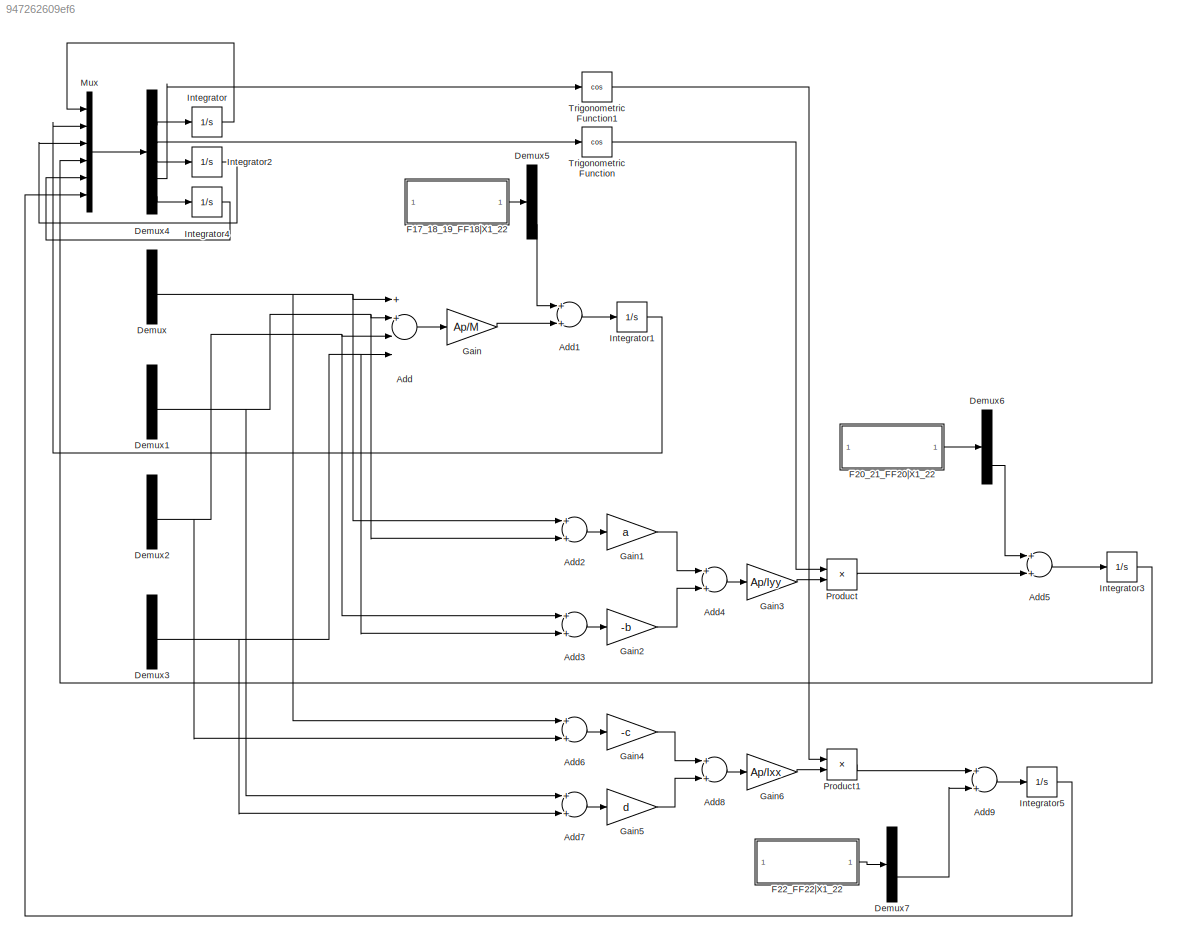
MODEL slx_947262609ef6
KIND model
CONFIG AbsTol = auto
CONFIG FixedStep = auto
CONFIG MaxStep = auto
CONFIG MinStep = auto
CONFIG RelTol = 1e-3
CONFIG SampleTimeConstraint = Unconstrained
CONFIG Solver = VariableStepAuto
CONFIG SolverMode = Auto
CONFIG SolverName = VariableStepAuto
CONFIG StartTime = 0.0
CONFIG StopTime = 10.0
BLOCK [Sum] Add
  InputSameDT = off
  Inputs = 4
  OutDataTypeStr = Inherit: Inherit via internal rule
  Ports = [4, 1]
  SaturateOnIntegerOverflow = off
BLOCK [Sum] Add1
  InputSameDT = off
  Inputs = 2
  OutDataTypeStr = Inherit: Inherit via internal rule
  Ports = [2, 1]
  SaturateOnIntegerOverflow = off
BLOCK [Sum] Add2
  InputSameDT = off
  Inputs = 2
  OutDataTypeStr = Inherit: Inherit via internal rule
  Ports = [2, 1]
  SaturateOnIntegerOverflow = off
BLOCK [Sum] Add3
  InputSameDT = off
  Inputs = 2
  OutDataTypeStr = Inherit: Inherit via internal rule
  Ports = [2, 1]
  SaturateOnIntegerOverflow = off
BLOCK [Sum] Add4
  InputSameDT = off
  Inputs = 2
  OutDataTypeStr = Inherit: Inherit via internal rule
  Ports = [2, 1]
  SaturateOnIntegerOverflow = off
BLOCK [Sum] Add5
  InputSameDT = off
  Inputs = 2
  OutDataTypeStr = Inherit: Inherit via internal rule
  Ports = [2, 1]
  SaturateOnIntegerOverflow = off
BLOCK [Sum] Add6
  InputSameDT = off
  Inputs = 2
  OutDataTypeStr = Inherit: Inherit via internal rule
  Ports = [2, 1]
  SaturateOnIntegerOverflow = off
BLOCK [Sum] Add7
  InputSameDT = off
  Inputs = 2
  OutDataTypeStr = Inherit: Inherit via internal rule
  Ports = [2, 1]
  SaturateOnIntegerOverflow = off
BLOCK [Sum] Add8
  InputSameDT = off
  Inputs = 2
  OutDataTypeStr = Inherit: Inherit via internal rule
  Ports = [2, 1]
  SaturateOnIntegerOverflow = off
BLOCK [Sum] Add9
  InputSameDT = off
  Inputs = 2
  OutDataTypeStr = Inherit: Inherit via internal rule
  Ports = [2, 1]
  SaturateOnIntegerOverflow = off
BLOCK [Demux] Demux
  DisplayOption = bar
  Ports = [1, 4]
BLOCK [Demux] Demux1
  DisplayOption = bar
  Ports = [1, 4]
BLOCK [Demux] Demux2
  DisplayOption = bar
  Ports = [1, 4]
BLOCK [Demux] Demux3
  DisplayOption = bar
  Ports = [1, 4]
BLOCK [Demux] Demux4
  DisplayOption = bar
  Outputs = 6
  Ports = [1, 6]
BLOCK [Demux] Demux5
  DisplayOption = bar
  Ports = [1, 4]
BLOCK [Demux] Demux6
  DisplayOption = bar
  Outputs = 3
  Ports = [1, 3]
BLOCK [Demux] Demux7
  DisplayOption = bar
  Outputs = 2
  Ports = [1, 2]
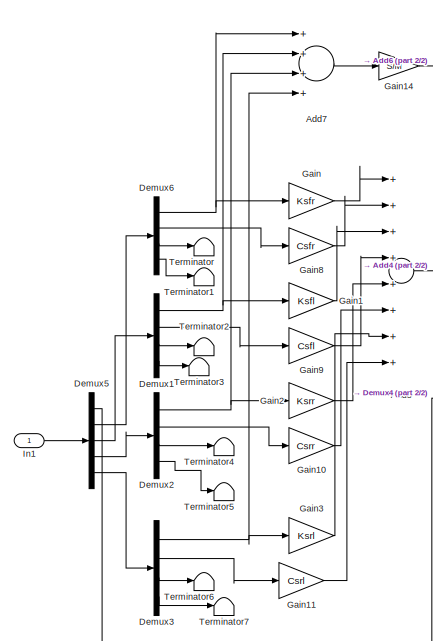
[diagram: F17_18_19_FF18|X1_22 - part 1/2, left side, full height]
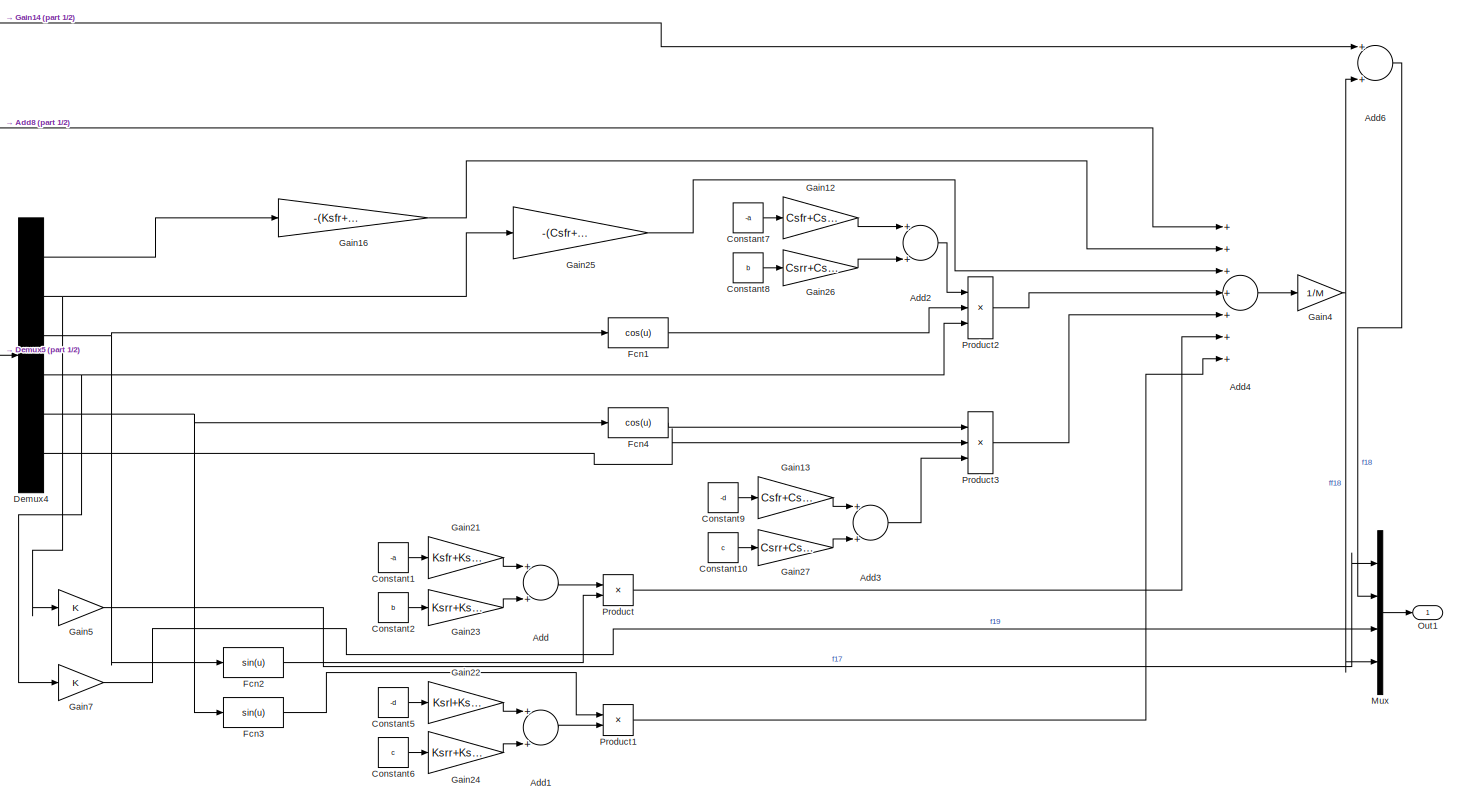
[diagram: F17_18_19_FF18|X1_22 - part 2/2, most of the canvas]
BLOCK [SubSystem] F17_18_19_FF18|X1_22
  Ports = [1, 1]
  RequestExecContextInheritance = off
  TreatAsAtomicUnit = on
  Variant = off
BLOCK [Sum] F17_18_19_FF18|X1_22/Add
  InputSameDT = off
  OutDataTypeStr = Inherit: Inherit via internal rule
  Ports = [2, 1]
  SaturateOnIntegerOverflow = off
BLOCK [Sum] F17_18_19_FF18|X1_22/Add1
  InputSameDT = off
  OutDataTypeStr = Inherit: Inherit via internal rule
  Ports = [2, 1]
  SaturateOnIntegerOverflow = off
BLOCK [Sum] F17_18_19_FF18|X1_22/Add2
  InputSameDT = off
  OutDataTypeStr = Inherit: Inherit via internal rule
  Ports = [2, 1]
  SaturateOnIntegerOverflow = off
BLOCK [Sum] F17_18_19_FF18|X1_22/Add3
  InputSameDT = off
  OutDataTypeStr = Inherit: Inherit via internal rule
  Ports = [2, 1]
  SaturateOnIntegerOverflow = off
BLOCK [Sum] F17_18_19_FF18|X1_22/Add4
  InputSameDT = off
  Inputs = +++++++
  OutDataTypeStr = Inherit: Inherit via internal rule
  Ports = [7, 1]
  SaturateOnIntegerOverflow = off
BLOCK [Sum] F17_18_19_FF18|X1_22/Add6
  InputSameDT = off
  OutDataTypeStr = Inherit: Inherit via internal rule
  Ports = [2, 1]
  SaturateOnIntegerOverflow = off
BLOCK [Sum] F17_18_19_FF18|X1_22/Add7
  InputSameDT = off
  Inputs = ++++
  OutDataTypeStr = Inherit: Inherit via internal rule
  Ports = [4, 1]
  SaturateOnIntegerOverflow = off
BLOCK [Sum] F17_18_19_FF18|X1_22/Add8
  InputSameDT = off
  Inputs = ++++++++
  OutDataTypeStr = Inherit: Inherit via internal rule
  Ports = [8, 1]
  SaturateOnIntegerOverflow = off
BLOCK [Constant] F17_18_19_FF18|X1_22/Constant1
  Value = -a
BLOCK [Constant] F17_18_19_FF18|X1_22/Constant10
  Value = c
BLOCK [Constant] F17_18_19_FF18|X1_22/Constant2
  Value = b
BLOCK [Constant] F17_18_19_FF18|X1_22/Constant5
  Value = -d
BLOCK [Constant] F17_18_19_FF18|X1_22/Constant6
  Value = c
BLOCK [Constant] F17_18_19_FF18|X1_22/Constant7
  Value = -a
BLOCK [Constant] F17_18_19_FF18|X1_22/Constant8
  Value = b
BLOCK [Constant] F17_18_19_FF18|X1_22/Constant9
  Value = -d
BLOCK [Demux] F17_18_19_FF18|X1_22/Demux1
  DisplayOption = bar
  Ports = [1, 4]
BLOCK [Demux] F17_18_19_FF18|X1_22/Demux2
  DisplayOption = bar
  Ports = [1, 4]
BLOCK [Demux] F17_18_19_FF18|X1_22/Demux3
  DisplayOption = bar
  Ports = [1, 4]
BLOCK [Demux] F17_18_19_FF18|X1_22/Demux4
  DisplayOption = bar
  Outputs = 6
  Ports = [1, 6]
BLOCK [Demux] F17_18_19_FF18|X1_22/Demux5
  DisplayOption = bar
  Outputs = 5
  Ports = [1, 5]
BLOCK [Demux] F17_18_19_FF18|X1_22/Demux6
  DisplayOption = bar
  Ports = [1, 4]
BLOCK [Fcn] F17_18_19_FF18|X1_22/Fcn1
  Expr = cos(u)
BLOCK [Fcn] F17_18_19_FF18|X1_22/Fcn2
  Expr = sin(u)
BLOCK [Fcn] F17_18_19_FF18|X1_22/Fcn3
  Expr = sin(u)
BLOCK [Fcn] F17_18_19_FF18|X1_22/Fcn4
  Expr = cos(u)
BLOCK [Gain] F17_18_19_FF18|X1_22/Gain
  Gain = Ksfr
  OutDataTypeStr = Inherit: Inherit via internal rule
  ParamDataTypeStr = Inherit: Inherit via internal rule
  SaturateOnIntegerOverflow = off
BLOCK [Gain] F17_18_19_FF18|X1_22/Gain1
  Gain = Ksfl
  OutDataTypeStr = Inherit: Inherit via internal rule
  ParamDataTypeStr = Inherit: Inherit via internal rule
  SaturateOnIntegerOverflow = off
BLOCK [Gain] F17_18_19_FF18|X1_22/Gain10
  Gain = Csrr
  OutDataTypeStr = Inherit: Inherit via internal rule
  ParamDataTypeStr = Inherit: Inherit via internal rule
  SaturateOnIntegerOverflow = off
BLOCK [Gain] F17_18_19_FF18|X1_22/Gain11
  Gain = Csrl
  OutDataTypeStr = Inherit: Inherit via internal rule
  ParamDataTypeStr = Inherit: Inherit via internal rule
  SaturateOnIntegerOverflow = off
BLOCK [Gain] F17_18_19_FF18|X1_22/Gain12
  Gain = Csfr+Csfl
  OutDataTypeStr = Inherit: Inherit via internal rule
  ParamDataTypeStr = Inherit: Inherit via internal rule
  SaturateOnIntegerOverflow = off
BLOCK [Gain] F17_18_19_FF18|X1_22/Gain13
  Gain = Csfr+Csfl
  OutDataTypeStr = Inherit: Inherit via internal rule
  ParamDataTypeStr = Inherit: Inherit via internal rule
  SaturateOnIntegerOverflow = off
BLOCK [Gain] F17_18_19_FF18|X1_22/Gain14
  Gain = S/M
  OutDataTypeStr = Inherit: Inherit via internal rule
  ParamDataTypeStr = Inherit: Inherit via internal rule
  SaturateOnIntegerOverflow = off
BLOCK [Gain] F17_18_19_FF18|X1_22/Gain16
  Gain = -(Ksfr+Ksfl+Ksrr+Ksrl)
  OutDataTypeStr = Inherit: Inherit via internal rule
  ParamDataTypeStr = Inherit: Inherit via internal rule
  SaturateOnIntegerOverflow = off
BLOCK [Gain] F17_18_19_FF18|X1_22/Gain2
  Gain = Ksrr
  OutDataTypeStr = Inherit: Inherit via internal rule
  ParamDataTypeStr = Inherit: Inherit via internal rule
  SaturateOnIntegerOverflow = off
BLOCK [Gain] F17_18_19_FF18|X1_22/Gain21
  Gain = Ksfr+Ksfl
  OutDataTypeStr = Inherit: Inherit via internal rule
  ParamDataTypeStr = Inherit: Inherit via internal rule
  SaturateOnIntegerOverflow = off
BLOCK [Gain] F17_18_19_FF18|X1_22/Gain22
  Gain = Ksrl+Ksfl
  OutDataTypeStr = Inherit: Inherit via internal rule
  ParamDataTypeStr = Inherit: Inherit via internal rule
  SaturateOnIntegerOverflow = off
BLOCK [Gain] F17_18_19_FF18|X1_22/Gain23
  Gain = Ksrr+Ksrl
  OutDataTypeStr = Inherit: Inherit via internal rule
  ParamDataTypeStr = Inherit: Inherit via internal rule
  SaturateOnIntegerOverflow = off
BLOCK [Gain] F17_18_19_FF18|X1_22/Gain24
  Gain = Ksrr+Ksfr
  OutDataTypeStr = Inherit: Inherit via internal rule
  ParamDataTypeStr = Inherit: Inherit via internal rule
  SaturateOnIntegerOverflow = off
BLOCK [Gain] F17_18_19_FF18|X1_22/Gain25
  Gain = -(Csfr+Csfl+Csrr+Csfr)
  OutDataTypeStr = Inherit: Inherit via internal rule
  ParamDataTypeStr = Inherit: Inherit via internal rule
  SaturateOnIntegerOverflow = off
BLOCK [Gain] F17_18_19_FF18|X1_22/Gain26
  Gain = Csrr+Csrl
  OutDataTypeStr = Inherit: Inherit via internal rule
  ParamDataTypeStr = Inherit: Inherit via internal rule
  SaturateOnIntegerOverflow = off
BLOCK [Gain] F17_18_19_FF18|X1_22/Gain27
  Gain = Csrr+Csrl
  OutDataTypeStr = Inherit: Inherit via internal rule
  ParamDataTypeStr = Inherit: Inherit via internal rule
  SaturateOnIntegerOverflow = off
BLOCK [Gain] F17_18_19_FF18|X1_22/Gain3
  Gain = Ksrl
  OutDataTypeStr = Inherit: Inherit via internal rule
  ParamDataTypeStr = Inherit: Inherit via internal rule
  SaturateOnIntegerOverflow = off
BLOCK [Gain] F17_18_19_FF18|X1_22/Gain4
  Gain = 1/M
  OutDataTypeStr = Inherit: Inherit via internal rule
  ParamDataTypeStr = Inherit: Inherit via internal rule
  SaturateOnIntegerOverflow = off
BLOCK [Gain] F17_18_19_FF18|X1_22/Gain5
  OutDataTypeStr = Inherit: Inherit via internal rule
  ParamDataTypeStr = Inherit: Inherit via internal rule
  SaturateOnIntegerOverflow = off
BLOCK [Gain] F17_18_19_FF18|X1_22/Gain7
  OutDataTypeStr = Inherit: Inherit via internal rule
  ParamDataTypeStr = Inherit: Inherit via internal rule
  SaturateOnIntegerOverflow = off
BLOCK [Gain] F17_18_19_FF18|X1_22/Gain8
  Gain = Csfr
  OutDataTypeStr = Inherit: Inherit via internal rule
  ParamDataTypeStr = Inherit: Inherit via internal rule
  SaturateOnIntegerOverflow = off
BLOCK [Gain] F17_18_19_FF18|X1_22/Gain9
  Gain = Csfl
  OutDataTypeStr = Inherit: Inherit via internal rule
  ParamDataTypeStr = Inherit: Inherit via internal rule
  SaturateOnIntegerOverflow = off
BLOCK [Inport] F17_18_19_FF18|X1_22/In1
  IconDisplay = Port number
BLOCK [Mux] F17_18_19_FF18|X1_22/Mux
  DisplayOption = bar
  Ports = [4, 1]
BLOCK [Outport] F17_18_19_FF18|X1_22/Out1
  IconDisplay = Port number
BLOCK [Product] F17_18_19_FF18|X1_22/Product
  InputSameDT = off
  OutDataTypeStr = Inherit: Inherit via internal rule
  Ports = [2, 1]
  RndMeth = Floor
  SaturateOnIntegerOverflow = off
BLOCK [Product] F17_18_19_FF18|X1_22/Product1
  InputSameDT = off
  OutDataTypeStr = Inherit: Inherit via internal rule
  Ports = [2, 1]
  RndMeth = Floor
  SaturateOnIntegerOverflow = off
BLOCK [Product] F17_18_19_FF18|X1_22/Product2
  InputSameDT = off
  Inputs = 3
  OutDataTypeStr = Inherit: Inherit via internal rule
  Ports = [3, 1]
  RndMeth = Floor
  SaturateOnIntegerOverflow = off
BLOCK [Product] F17_18_19_FF18|X1_22/Product3
  InputSameDT = off
  Inputs = 3
  OutDataTypeStr = Inherit: Inherit via internal rule
  Ports = [3, 1]
  RndMeth = Floor
  SaturateOnIntegerOverflow = off
BLOCK [Terminator] F17_18_19_FF18|X1_22/Terminator
BLOCK [Terminator] F17_18_19_FF18|X1_22/Terminator1
BLOCK [Terminator] F17_18_19_FF18|X1_22/Terminator2
BLOCK [Terminator] F17_18_19_FF18|X1_22/Terminator3
BLOCK [Terminator] F17_18_19_FF18|X1_22/Terminator4
BLOCK [Terminator] F17_18_19_FF18|X1_22/Terminator5
BLOCK [Terminator] F17_18_19_FF18|X1_22/Terminator6
BLOCK [Terminator] F17_18_19_FF18|X1_22/Terminator7
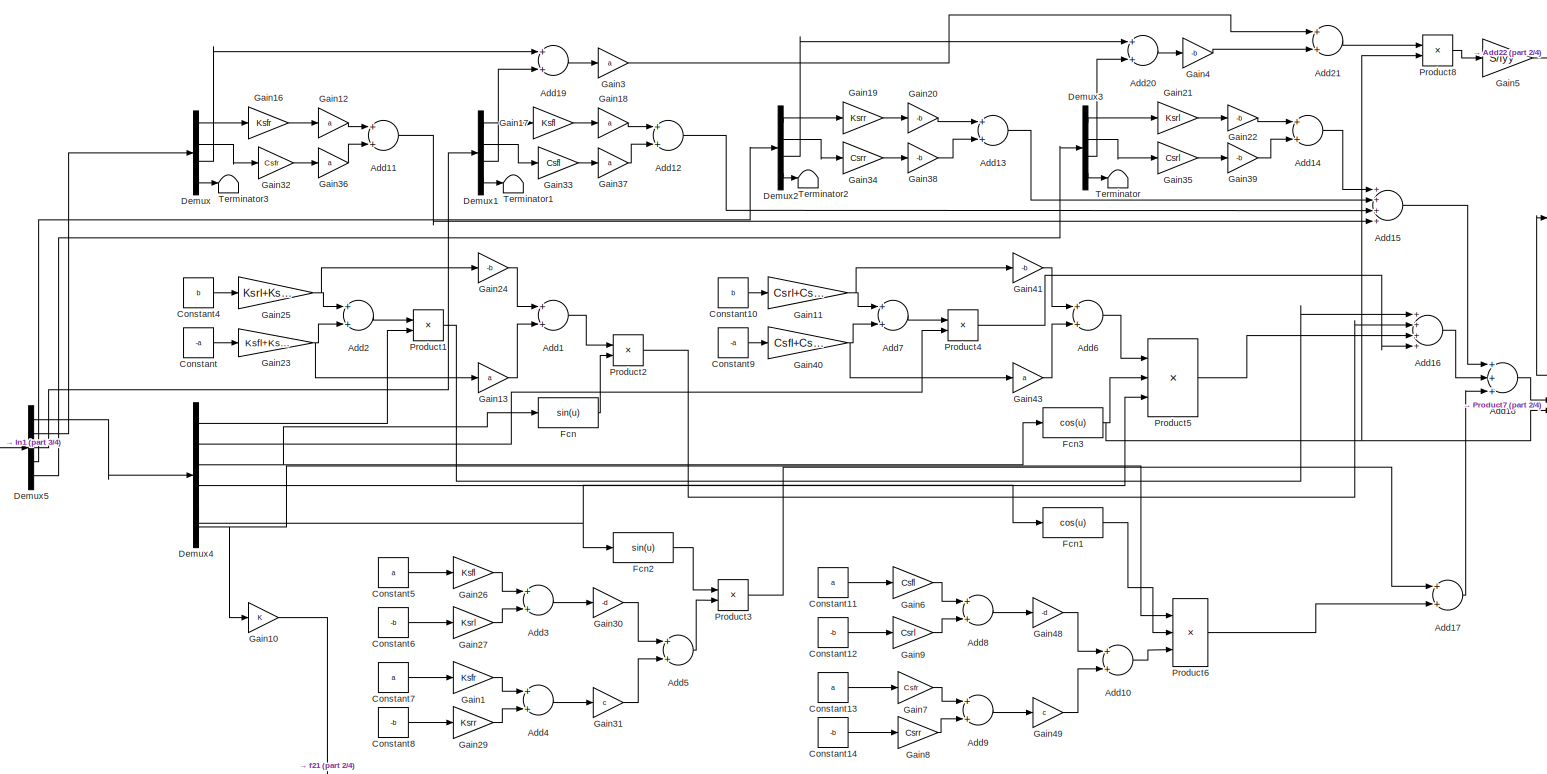
[diagram: F20_21_FF20|X1_22  - part 1/4, most of the canvas]
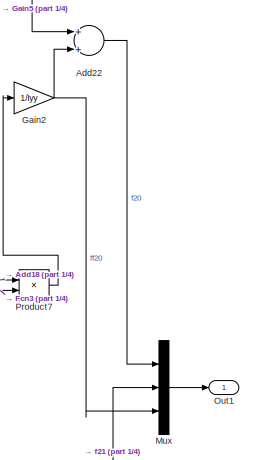
[diagram: F20_21_FF20|X1_22  - part 2/4, middle right region]
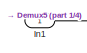
[diagram: F20_21_FF20|X1_22  - part 3/4, middle left region]
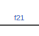
[diagram: F20_21_FF20|X1_22  - part 4/4, bottom center region]
BLOCK [SubSystem] F20_21_FF20|X1_22 
  Ports = [1, 1]
  RequestExecContextInheritance = off
  TreatAsAtomicUnit = on
  Variant = off
BLOCK [Sum] F20_21_FF20|X1_22 /Add1
  InputSameDT = off
  OutDataTypeStr = Inherit: Inherit via internal rule
  Ports = [2, 1]
  SaturateOnIntegerOverflow = off
BLOCK [Sum] F20_21_FF20|X1_22 /Add10
  InputSameDT = off
  OutDataTypeStr = Inherit: Inherit via internal rule
  Ports = [2, 1]
  SaturateOnIntegerOverflow = off
BLOCK [Sum] F20_21_FF20|X1_22 /Add11
  InputSameDT = off
  OutDataTypeStr = Inherit: Inherit via internal rule
  Ports = [2, 1]
  SaturateOnIntegerOverflow = off
BLOCK [Sum] F20_21_FF20|X1_22 /Add12
  InputSameDT = off
  OutDataTypeStr = Inherit: Inherit via internal rule
  Ports = [2, 1]
  SaturateOnIntegerOverflow = off
BLOCK [Sum] F20_21_FF20|X1_22 /Add13
  InputSameDT = off
  OutDataTypeStr = Inherit: Inherit via internal rule
  Ports = [2, 1]
  SaturateOnIntegerOverflow = off
BLOCK [Sum] F20_21_FF20|X1_22 /Add14
  InputSameDT = off
  OutDataTypeStr = Inherit: Inherit via internal rule
  Ports = [2, 1]
  SaturateOnIntegerOverflow = off
BLOCK [Sum] F20_21_FF20|X1_22 /Add15
  InputSameDT = off
  Inputs = ++++
  OutDataTypeStr = Inherit: Inherit via internal rule
  Ports = [4, 1]
  SaturateOnIntegerOverflow = off
BLOCK [Sum] F20_21_FF20|X1_22 /Add16
  InputSameDT = off
  Inputs = ++++
  OutDataTypeStr = Inherit: Inherit via internal rule
  Ports = [4, 1]
  SaturateOnIntegerOverflow = off
BLOCK [Sum] F20_21_FF20|X1_22 /Add17
  InputSameDT = off
  OutDataTypeStr = Inherit: Inherit via internal rule
  Ports = [2, 1]
  SaturateOnIntegerOverflow = off
BLOCK [Sum] F20_21_FF20|X1_22 /Add18
  InputSameDT = off
  Inputs = +++
  OutDataTypeStr = Inherit: Inherit via internal rule
  Ports = [3, 1]
  SaturateOnIntegerOverflow = off
BLOCK [Sum] F20_21_FF20|X1_22 /Add19
  InputSameDT = off
  OutDataTypeStr = Inherit: Inherit via internal rule
  Ports = [2, 1]
  SaturateOnIntegerOverflow = off
BLOCK [Sum] F20_21_FF20|X1_22 /Add2
  InputSameDT = off
  OutDataTypeStr = Inherit: Inherit via internal rule
  Ports = [2, 1]
  SaturateOnIntegerOverflow = off
BLOCK [Sum] F20_21_FF20|X1_22 /Add20
  InputSameDT = off
  OutDataTypeStr = Inherit: Inherit via internal rule
  Ports = [2, 1]
  SaturateOnIntegerOverflow = off
BLOCK [Sum] F20_21_FF20|X1_22 /Add21
  InputSameDT = off
  OutDataTypeStr = Inherit: Inherit via internal rule
  Ports = [2, 1]
  SaturateOnIntegerOverflow = off
BLOCK [Sum] F20_21_FF20|X1_22 /Add22
  InputSameDT = off
  OutDataTypeStr = Inherit: Inherit via internal rule
  Ports = [2, 1]
  SaturateOnIntegerOverflow = off
BLOCK [Sum] F20_21_FF20|X1_22 /Add3
  InputSameDT = off
  OutDataTypeStr = Inherit: Inherit via internal rule
  Ports = [2, 1]
  SaturateOnIntegerOverflow = off
BLOCK [Sum] F20_21_FF20|X1_22 /Add4
  InputSameDT = off
  OutDataTypeStr = Inherit: Inherit via internal rule
  Ports = [2, 1]
  SaturateOnIntegerOverflow = off
BLOCK [Sum] F20_21_FF20|X1_22 /Add5
  InputSameDT = off
  OutDataTypeStr = Inherit: Inherit via internal rule
  Ports = [2, 1]
  SaturateOnIntegerOverflow = off
BLOCK [Sum] F20_21_FF20|X1_22 /Add6
  InputSameDT = off
  OutDataTypeStr = Inherit: Inherit via internal rule
  Ports = [2, 1]
  SaturateOnIntegerOverflow = off
BLOCK [Sum] F20_21_FF20|X1_22 /Add7
  InputSameDT = off
  OutDataTypeStr = Inherit: Inherit via internal rule
  Ports = [2, 1]
  SaturateOnIntegerOverflow = off
BLOCK [Sum] F20_21_FF20|X1_22 /Add8
  InputSameDT = off
  OutDataTypeStr = Inherit: Inherit via internal rule
  Ports = [2, 1]
  SaturateOnIntegerOverflow = off
BLOCK [Sum] F20_21_FF20|X1_22 /Add9
  InputSameDT = off
  OutDataTypeStr = Inherit: Inherit via internal rule
  Ports = [2, 1]
  SaturateOnIntegerOverflow = off
BLOCK [Constant] F20_21_FF20|X1_22 /Constant
  Value = -a
BLOCK [Constant] F20_21_FF20|X1_22 /Constant10
  Value = b
BLOCK [Constant] F20_21_FF20|X1_22 /Constant11
  Value = a
BLOCK [Constant] F20_21_FF20|X1_22 /Constant12
  Value = -b
BLOCK [Constant] F20_21_FF20|X1_22 /Constant13
  Value = a
BLOCK [Constant] F20_21_FF20|X1_22 /Constant14
  Value = -b
BLOCK [Constant] F20_21_FF20|X1_22 /Constant4
  Value = b
BLOCK [Constant] F20_21_FF20|X1_22 /Constant5
  Value = a
BLOCK [Constant] F20_21_FF20|X1_22 /Constant6
  Value = -b
BLOCK [Constant] F20_21_FF20|X1_22 /Constant7
  Value = a
BLOCK [Constant] F20_21_FF20|X1_22 /Constant8
  Value = -b
BLOCK [Constant] F20_21_FF20|X1_22 /Constant9
  Value = -a
BLOCK [Demux] F20_21_FF20|X1_22 /Demux
  DisplayOption = bar
  Ports = [1, 4]
BLOCK [Demux] F20_21_FF20|X1_22 /Demux1
  DisplayOption = bar
  Ports = [1, 4]
BLOCK [Demux] F20_21_FF20|X1_22 /Demux2
  DisplayOption = bar
  Ports = [1, 4]
BLOCK [Demux] F20_21_FF20|X1_22 /Demux3
  DisplayOption = bar
  Ports = [1, 4]
BLOCK [Demux] F20_21_FF20|X1_22 /Demux4
  DisplayOption = bar
  Outputs = 6
  Ports = [1, 6]
BLOCK [Demux] F20_21_FF20|X1_22 /Demux5
  DisplayOption = bar
  Outputs = 5
  Ports = [1, 5]
BLOCK [Fcn] F20_21_FF20|X1_22 /Fcn
  Expr = sin(u)
BLOCK [Fcn] F20_21_FF20|X1_22 /Fcn1
  Expr = cos(u)
BLOCK [Fcn] F20_21_FF20|X1_22 /Fcn2
  Expr = sin(u)
BLOCK [Fcn] F20_21_FF20|X1_22 /Fcn3
  Expr = cos(u)
BLOCK [Gain] F20_21_FF20|X1_22 /Gain1
  Gain = Ksfr
  OutDataTypeStr = Inherit: Inherit via internal rule
  ParamDataTypeStr = Inherit: Inherit via internal rule
  SaturateOnIntegerOverflow = off
BLOCK [Gain] F20_21_FF20|X1_22 /Gain10
  OutDataTypeStr = Inherit: Inherit via internal rule
  ParamDataTypeStr = Inherit: Inherit via internal rule
  SaturateOnIntegerOverflow = off
BLOCK [Gain] F20_21_FF20|X1_22 /Gain11
  Gain = Csrl+Csrr
  OutDataTypeStr = Inherit: Inherit via internal rule
  ParamDataTypeStr = Inherit: Inherit via internal rule
  SaturateOnIntegerOverflow = off
BLOCK [Gain] F20_21_FF20|X1_22 /Gain12
  Gain = a
  OutDataTypeStr = Inherit: Inherit via internal rule
  ParamDataTypeStr = Inherit: Inherit via internal rule
  SaturateOnIntegerOverflow = off
BLOCK [Gain] F20_21_FF20|X1_22 /Gain13
  Gain = a
  OutDataTypeStr = Inherit: Inherit via internal rule
  ParamDataTypeStr = Inherit: Inherit via internal rule
  SaturateOnIntegerOverflow = off
BLOCK [Gain] F20_21_FF20|X1_22 /Gain16
  Gain = Ksfr
  OutDataTypeStr = Inherit: Inherit via internal rule
  ParamDataTypeStr = Inherit: Inherit via internal rule
  SaturateOnIntegerOverflow = off
BLOCK [Gain] F20_21_FF20|X1_22 /Gain17
  Gain = Ksfl
  OutDataTypeStr = Inherit: Inherit via internal rule
  ParamDataTypeStr = Inherit: Inherit via internal rule
  SaturateOnIntegerOverflow = off
BLOCK [Gain] F20_21_FF20|X1_22 /Gain18
  Gain = a
  OutDataTypeStr = Inherit: Inherit via internal rule
  ParamDataTypeStr = Inherit: Inherit via internal rule
  SaturateOnIntegerOverflow = off
BLOCK [Gain] F20_21_FF20|X1_22 /Gain19
  Gain = Ksrr
  OutDataTypeStr = Inherit: Inherit via internal rule
  ParamDataTypeStr = Inherit: Inherit via internal rule
  SaturateOnIntegerOverflow = off
BLOCK [Gain] F20_21_FF20|X1_22 /Gain2
  Gain = 1/Iyy
  OutDataTypeStr = Inherit: Inherit via internal rule
  ParamDataTypeStr = Inherit: Inherit via internal rule
  SaturateOnIntegerOverflow = off
BLOCK [Gain] F20_21_FF20|X1_22 /Gain20
  Gain = -b
  OutDataTypeStr = Inherit: Inherit via internal rule
  ParamDataTypeStr = Inherit: Inherit via internal rule
  SaturateOnIntegerOverflow = off
BLOCK [Gain] F20_21_FF20|X1_22 /Gain21
  Gain = Ksrl
  OutDataTypeStr = Inherit: Inherit via internal rule
  ParamDataTypeStr = Inherit: Inherit via internal rule
  SaturateOnIntegerOverflow = off
BLOCK [Gain] F20_21_FF20|X1_22 /Gain22
  Gain = -b
  OutDataTypeStr = Inherit: Inherit via internal rule
  ParamDataTypeStr = Inherit: Inherit via internal rule
  SaturateOnIntegerOverflow = off
BLOCK [Gain] F20_21_FF20|X1_22 /Gain23
  Gain = Ksfl+Ksfr
  OutDataTypeStr = Inherit: Inherit via internal rule
  ParamDataTypeStr = Inherit: Inherit via internal rule
  SaturateOnIntegerOverflow = off
BLOCK [Gain] F20_21_FF20|X1_22 /Gain24
  Gain = -b
  OutDataTypeStr = Inherit: Inherit via internal rule
  ParamDataTypeStr = Inherit: Inherit via internal rule
  SaturateOnIntegerOverflow = off
BLOCK [Gain] F20_21_FF20|X1_22 /Gain25
  Gain = Ksrl+Ksrr
  OutDataTypeStr = Inherit: Inherit via internal rule
  ParamDataTypeStr = Inherit: Inherit via internal rule
  SaturateOnIntegerOverflow = off
BLOCK [Gain] F20_21_FF20|X1_22 /Gain26
  Gain = Ksfl
  OutDataTypeStr = Inherit: Inherit via internal rule
  ParamDataTypeStr = Inherit: Inherit via internal rule
  SaturateOnIntegerOverflow = off
BLOCK [Gain] F20_21_FF20|X1_22 /Gain27
  Gain = Ksrl
  OutDataTypeStr = Inherit: Inherit via internal rule
  ParamDataTypeStr = Inherit: Inherit via internal rule
  SaturateOnIntegerOverflow = off
BLOCK [Gain] F20_21_FF20|X1_22 /Gain29
  Gain = Ksrr
  OutDataTypeStr = Inherit: Inherit via internal rule
  ParamDataTypeStr = Inherit: Inherit via internal rule
  SaturateOnIntegerOverflow = off
BLOCK [Gain] F20_21_FF20|X1_22 /Gain3
  Gain = a
  OutDataTypeStr = Inherit: Inherit via internal rule
  ParamDataTypeStr = Inherit: Inherit via internal rule
  SaturateOnIntegerOverflow = off
BLOCK [Gain] F20_21_FF20|X1_22 /Gain30
  Gain = -d
  OutDataTypeStr = Inherit: Inherit via internal rule
  ParamDataTypeStr = Inherit: Inherit via internal rule
  SaturateOnIntegerOverflow = off
BLOCK [Gain] F20_21_FF20|X1_22 /Gain31
  Gain = c
  OutDataTypeStr = Inherit: Inherit via internal rule
  ParamDataTypeStr = Inherit: Inherit via internal rule
  SaturateOnIntegerOverflow = off
BLOCK [Gain] F20_21_FF20|X1_22 /Gain32
  Gain = Csfr
  OutDataTypeStr = Inherit: Inherit via internal rule
  ParamDataTypeStr = Inherit: Inherit via internal rule
  SaturateOnIntegerOverflow = off
BLOCK [Gain] F20_21_FF20|X1_22 /Gain33
  Gain = Csfl
  OutDataTypeStr = Inherit: Inherit via internal rule
  ParamDataTypeStr = Inherit: Inherit via internal rule
  SaturateOnIntegerOverflow = off
BLOCK [Gain] F20_21_FF20|X1_22 /Gain34
  Gain = Csrr
  OutDataTypeStr = Inherit: Inherit via internal rule
  ParamDataTypeStr = Inherit: Inherit via internal rule
  SaturateOnIntegerOverflow = off
BLOCK [Gain] F20_21_FF20|X1_22 /Gain35
  Gain = Csrl
  OutDataTypeStr = Inherit: Inherit via internal rule
  ParamDataTypeStr = Inherit: Inherit via internal rule
  SaturateOnIntegerOverflow = off
BLOCK [Gain] F20_21_FF20|X1_22 /Gain36
  Gain = a
  OutDataTypeStr = Inherit: Inherit via internal rule
  ParamDataTypeStr = Inherit: Inherit via internal rule
  SaturateOnIntegerOverflow = off
BLOCK [Gain] F20_21_FF20|X1_22 /Gain37
  Gain = a
  OutDataTypeStr = Inherit: Inherit via internal rule
  ParamDataTypeStr = Inherit: Inherit via internal rule
  SaturateOnIntegerOverflow = off
BLOCK [Gain] F20_21_FF20|X1_22 /Gain38
  Gain = -b
  OutDataTypeStr = Inherit: Inherit via internal rule
  ParamDataTypeStr = Inherit: Inherit via internal rule
  SaturateOnIntegerOverflow = off
BLOCK [Gain] F20_21_FF20|X1_22 /Gain39
  Gain = -b
  OutDataTypeStr = Inherit: Inherit via internal rule
  ParamDataTypeStr = Inherit: Inherit via internal rule
  SaturateOnIntegerOverflow = off
BLOCK [Gain] F20_21_FF20|X1_22 /Gain4
  Gain = -b
  OutDataTypeStr = Inherit: Inherit via internal rule
  ParamDataTypeStr = Inherit: Inherit via internal rule
  SaturateOnIntegerOverflow = off
BLOCK [Gain] F20_21_FF20|X1_22 /Gain40
  Gain = Csfl+Csfr
  OutDataTypeStr = Inherit: Inherit via internal rule
  ParamDataTypeStr = Inherit: Inherit via internal rule
  SaturateOnIntegerOverflow = off
BLOCK [Gain] F20_21_FF20|X1_22 /Gain41
  Gain = -b
  OutDataTypeStr = Inherit: Inherit via internal rule
  ParamDataTypeStr = Inherit: Inherit via internal rule
  SaturateOnIntegerOverflow = off
BLOCK [Gain] F20_21_FF20|X1_22 /Gain43
  Gain = a
  OutDataTypeStr = Inherit: Inherit via internal rule
  ParamDataTypeStr = Inherit: Inherit via internal rule
  SaturateOnIntegerOverflow = off
BLOCK [Gain] F20_21_FF20|X1_22 /Gain48
  Gain = -d
  OutDataTypeStr = Inherit: Inherit via internal rule
  ParamDataTypeStr = Inherit: Inherit via internal rule
  SaturateOnIntegerOverflow = off
BLOCK [Gain] F20_21_FF20|X1_22 /Gain49
  Gain = c
  OutDataTypeStr = Inherit: Inherit via internal rule
  ParamDataTypeStr = Inherit: Inherit via internal rule
  SaturateOnIntegerOverflow = off
BLOCK [Gain] F20_21_FF20|X1_22 /Gain5
  Gain = S/Iyy
  OutDataTypeStr = Inherit: Inherit via internal rule
  ParamDataTypeStr = Inherit: Inherit via internal rule
  SaturateOnIntegerOverflow = off
BLOCK [Gain] F20_21_FF20|X1_22 /Gain6
  Gain = Csfl
  OutDataTypeStr = Inherit: Inherit via internal rule
  ParamDataTypeStr = Inherit: Inherit via internal rule
  SaturateOnIntegerOverflow = off
BLOCK [Gain] F20_21_FF20|X1_22 /Gain7
  Gain = Csfr
  OutDataTypeStr = Inherit: Inherit via internal rule
  ParamDataTypeStr = Inherit: Inherit via internal rule
  SaturateOnIntegerOverflow = off
BLOCK [Gain] F20_21_FF20|X1_22 /Gain8
  Gain = Csrr
  OutDataTypeStr = Inherit: Inherit via internal rule
  ParamDataTypeStr = Inherit: Inherit via internal rule
  SaturateOnIntegerOverflow = off
BLOCK [Gain] F20_21_FF20|X1_22 /Gain9
  Gain = Csrl
  OutDataTypeStr = Inherit: Inherit via internal rule
  ParamDataTypeStr = Inherit: Inherit via internal rule
  SaturateOnIntegerOverflow = off
BLOCK [Inport] F20_21_FF20|X1_22 /In1
  IconDisplay = Port number
BLOCK [Mux] F20_21_FF20|X1_22 /Mux
  DisplayOption = bar
  Inputs = 3
  Ports = [3, 1]
BLOCK [Outport] F20_21_FF20|X1_22 /Out1
  IconDisplay = Port number
BLOCK [Product] F20_21_FF20|X1_22 /Product1
  InputSameDT = off
  OutDataTypeStr = Inherit: Inherit via internal rule
  Ports = [2, 1]
  RndMeth = Floor
  SaturateOnIntegerOverflow = off
BLOCK [Product] F20_21_FF20|X1_22 /Product2
  InputSameDT = off
  OutDataTypeStr = Inherit: Inherit via internal rule
  Ports = [2, 1]
  RndMeth = Floor
  SaturateOnIntegerOverflow = off
BLOCK [Product] F20_21_FF20|X1_22 /Product3
  InputSameDT = off
  OutDataTypeStr = Inherit: Inherit via internal rule
  Ports = [2, 1]
  RndMeth = Floor
  SaturateOnIntegerOverflow = off
BLOCK [Product] F20_21_FF20|X1_22 /Product4
  InputSameDT = off
  OutDataTypeStr = Inherit: Inherit via internal rule
  Ports = [2, 1]
  RndMeth = Floor
  SaturateOnIntegerOverflow = off
BLOCK [Product] F20_21_FF20|X1_22 /Product5
  InputSameDT = off
  Inputs = 3
  OutDataTypeStr = Inherit: Inherit via internal rule
  Ports = [3, 1]
  RndMeth = Floor
  SaturateOnIntegerOverflow = off
BLOCK [Product] F20_21_FF20|X1_22 /Product6
  InputSameDT = off
  Inputs = 3
  OutDataTypeStr = Inherit: Inherit via internal rule
  Ports = [3, 1]
  RndMeth = Floor
  SaturateOnIntegerOverflow = off
BLOCK [Product] F20_21_FF20|X1_22 /Product7
  InputSameDT = off
  OutDataTypeStr = Inherit: Inherit via internal rule
  Ports = [2, 1]
  RndMeth = Floor
  SaturateOnIntegerOverflow = off
BLOCK [Product] F20_21_FF20|X1_22 /Product8
  InputSameDT = off
  OutDataTypeStr = Inherit: Inherit via internal rule
  Ports = [2, 1]
  RndMeth = Floor
  SaturateOnIntegerOverflow = off
BLOCK [Terminator] F20_21_FF20|X1_22 /Terminator
BLOCK [Terminator] F20_21_FF20|X1_22 /Terminator1
BLOCK [Terminator] F20_21_FF20|X1_22 /Terminator2
BLOCK [Terminator] F20_21_FF20|X1_22 /Terminator3
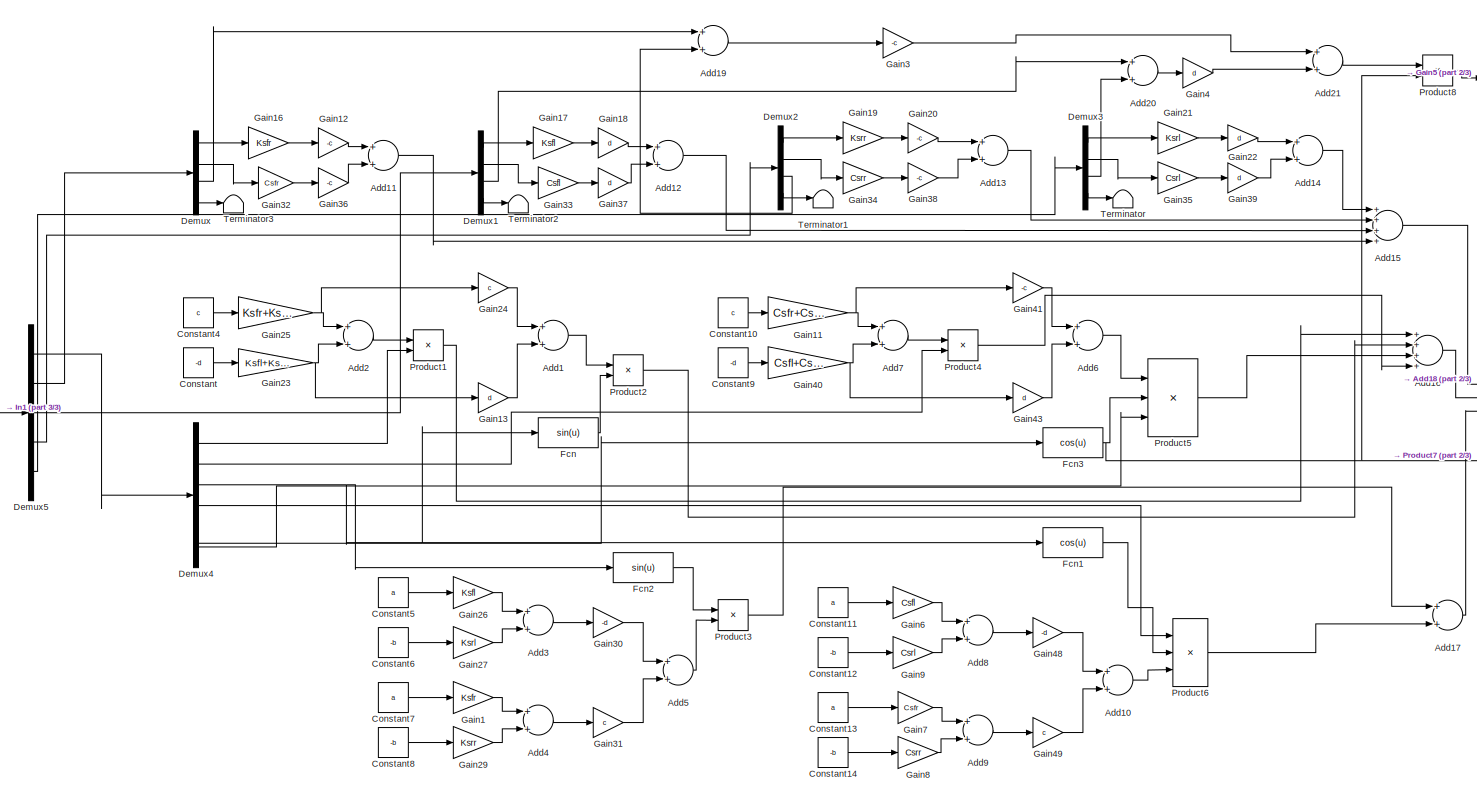
[diagram: F22_FF22|X1_22 - part 1/3, most of the canvas]
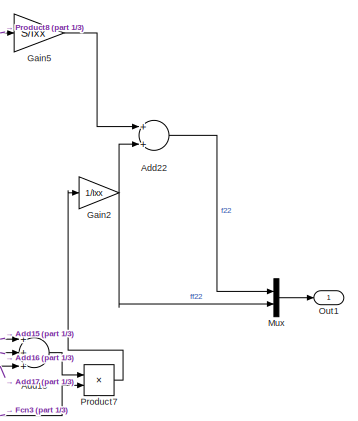
[diagram: F22_FF22|X1_22 - part 2/3, middle right region]
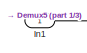
[diagram: F22_FF22|X1_22 - part 3/3, middle left region]
BLOCK [SubSystem] F22_FF22|X1_22
  Ports = [1, 1]
  RequestExecContextInheritance = off
  TreatAsAtomicUnit = on
  Variant = off
BLOCK [Sum] F22_FF22|X1_22/Add1
  InputSameDT = off
  OutDataTypeStr = Inherit: Inherit via internal rule
  Ports = [2, 1]
  SaturateOnIntegerOverflow = off
BLOCK [Sum] F22_FF22|X1_22/Add10
  InputSameDT = off
  OutDataTypeStr = Inherit: Inherit via internal rule
  Ports = [2, 1]
  SaturateOnIntegerOverflow = off
BLOCK [Sum] F22_FF22|X1_22/Add11
  InputSameDT = off
  OutDataTypeStr = Inherit: Inherit via internal rule
  Ports = [2, 1]
  SaturateOnIntegerOverflow = off
BLOCK [Sum] F22_FF22|X1_22/Add12
  InputSameDT = off
  OutDataTypeStr = Inherit: Inherit via internal rule
  Ports = [2, 1]
  SaturateOnIntegerOverflow = off
BLOCK [Sum] F22_FF22|X1_22/Add13
  InputSameDT = off
  OutDataTypeStr = Inherit: Inherit via internal rule
  Ports = [2, 1]
  SaturateOnIntegerOverflow = off
BLOCK [Sum] F22_FF22|X1_22/Add14
  InputSameDT = off
  OutDataTypeStr = Inherit: Inherit via internal rule
  Ports = [2, 1]
  SaturateOnIntegerOverflow = off
BLOCK [Sum] F22_FF22|X1_22/Add15
  InputSameDT = off
  Inputs = ++++
  OutDataTypeStr = Inherit: Inherit via internal rule
  Ports = [4, 1]
  SaturateOnIntegerOverflow = off
BLOCK [Sum] F22_FF22|X1_22/Add16
  InputSameDT = off
  Inputs = ++++
  OutDataTypeStr = Inherit: Inherit via internal rule
  Ports = [4, 1]
  SaturateOnIntegerOverflow = off
BLOCK [Sum] F22_FF22|X1_22/Add17
  InputSameDT = off
  OutDataTypeStr = Inherit: Inherit via internal rule
  Ports = [2, 1]
  SaturateOnIntegerOverflow = off
BLOCK [Sum] F22_FF22|X1_22/Add18
  InputSameDT = off
  Inputs = +++
  OutDataTypeStr = Inherit: Inherit via internal rule
  Ports = [3, 1]
  SaturateOnIntegerOverflow = off
BLOCK [Sum] F22_FF22|X1_22/Add19
  InputSameDT = off
  OutDataTypeStr = Inherit: Inherit via internal rule
  Ports = [2, 1]
  SaturateOnIntegerOverflow = off
BLOCK [Sum] F22_FF22|X1_22/Add2
  InputSameDT = off
  OutDataTypeStr = Inherit: Inherit via internal rule
  Ports = [2, 1]
  SaturateOnIntegerOverflow = off
BLOCK [Sum] F22_FF22|X1_22/Add20
  InputSameDT = off
  OutDataTypeStr = Inherit: Inherit via internal rule
  Ports = [2, 1]
  SaturateOnIntegerOverflow = off
BLOCK [Sum] F22_FF22|X1_22/Add21
  InputSameDT = off
  OutDataTypeStr = Inherit: Inherit via internal rule
  Ports = [2, 1]
  SaturateOnIntegerOverflow = off
BLOCK [Sum] F22_FF22|X1_22/Add22
  InputSameDT = off
  OutDataTypeStr = Inherit: Inherit via internal rule
  Ports = [2, 1]
  SaturateOnIntegerOverflow = off
BLOCK [Sum] F22_FF22|X1_22/Add3
  InputSameDT = off
  OutDataTypeStr = Inherit: Inherit via internal rule
  Ports = [2, 1]
  SaturateOnIntegerOverflow = off
BLOCK [Sum] F22_FF22|X1_22/Add4
  InputSameDT = off
  OutDataTypeStr = Inherit: Inherit via internal rule
  Ports = [2, 1]
  SaturateOnIntegerOverflow = off
BLOCK [Sum] F22_FF22|X1_22/Add5
  InputSameDT = off
  OutDataTypeStr = Inherit: Inherit via internal rule
  Ports = [2, 1]
  SaturateOnIntegerOverflow = off
BLOCK [Sum] F22_FF22|X1_22/Add6
  InputSameDT = off
  OutDataTypeStr = Inherit: Inherit via internal rule
  Ports = [2, 1]
  SaturateOnIntegerOverflow = off
BLOCK [Sum] F22_FF22|X1_22/Add7
  InputSameDT = off
  OutDataTypeStr = Inherit: Inherit via internal rule
  Ports = [2, 1]
  SaturateOnIntegerOverflow = off
BLOCK [Sum] F22_FF22|X1_22/Add8
  InputSameDT = off
  OutDataTypeStr = Inherit: Inherit via internal rule
  Ports = [2, 1]
  SaturateOnIntegerOverflow = off
BLOCK [Sum] F22_FF22|X1_22/Add9
  InputSameDT = off
  OutDataTypeStr = Inherit: Inherit via internal rule
  Ports = [2, 1]
  SaturateOnIntegerOverflow = off
BLOCK [Constant] F22_FF22|X1_22/Constant
  Value = -d
BLOCK [Constant] F22_FF22|X1_22/Constant10
  Value = c
BLOCK [Constant] F22_FF22|X1_22/Constant11
  Value = a
BLOCK [Constant] F22_FF22|X1_22/Constant12
  Value = -b
BLOCK [Constant] F22_FF22|X1_22/Constant13
  Value = a
BLOCK [Constant] F22_FF22|X1_22/Constant14
  Value = -b
BLOCK [Constant] F22_FF22|X1_22/Constant4
  Value = c
BLOCK [Constant] F22_FF22|X1_22/Constant5
  Value = a
BLOCK [Constant] F22_FF22|X1_22/Constant6
  Value = -b
BLOCK [Constant] F22_FF22|X1_22/Constant7
  Value = a
BLOCK [Constant] F22_FF22|X1_22/Constant8
  Value = -b
BLOCK [Constant] F22_FF22|X1_22/Constant9
  Value = -d
BLOCK [Demux] F22_FF22|X1_22/Demux
  DisplayOption = bar
  Ports = [1, 4]
BLOCK [Demux] F22_FF22|X1_22/Demux1
  DisplayOption = bar
  Ports = [1, 4]
BLOCK [Demux] F22_FF22|X1_22/Demux2
  DisplayOption = bar
  Ports = [1, 4]
BLOCK [Demux] F22_FF22|X1_22/Demux3
  DisplayOption = bar
  Ports = [1, 4]
BLOCK [Demux] F22_FF22|X1_22/Demux4
  DisplayOption = bar
  Outputs = 6
  Ports = [1, 6]
BLOCK [Demux] F22_FF22|X1_22/Demux5
  DisplayOption = bar
  Outputs = 5
  Ports = [1, 5]
BLOCK [Fcn] F22_FF22|X1_22/Fcn
  Expr = sin(u)
BLOCK [Fcn] F22_FF22|X1_22/Fcn1
  Expr = cos(u)
BLOCK [Fcn] F22_FF22|X1_22/Fcn2
  Expr = sin(u)
BLOCK [Fcn] F22_FF22|X1_22/Fcn3
  Expr = cos(u)
BLOCK [Gain] F22_FF22|X1_22/Gain1
  Gain = Ksfr
  OutDataTypeStr = Inherit: Inherit via internal rule
  ParamDataTypeStr = Inherit: Inherit via internal rule
  SaturateOnIntegerOverflow = off
BLOCK [Gain] F22_FF22|X1_22/Gain11
  Gain = Csfr+Csrr
  OutDataTypeStr = Inherit: Inherit via internal rule
  ParamDataTypeStr = Inherit: Inherit via internal rule
  SaturateOnIntegerOverflow = off
BLOCK [Gain] F22_FF22|X1_22/Gain12
  Gain = -c
  OutDataTypeStr = Inherit: Inherit via internal rule
  ParamDataTypeStr = Inherit: Inherit via internal rule
  SaturateOnIntegerOverflow = off
BLOCK [Gain] F22_FF22|X1_22/Gain13
  Gain = d
  OutDataTypeStr = Inherit: Inherit via internal rule
  ParamDataTypeStr = Inherit: Inherit via internal rule
  SaturateOnIntegerOverflow = off
BLOCK [Gain] F22_FF22|X1_22/Gain16
  Gain = Ksfr
  OutDataTypeStr = Inherit: Inherit via internal rule
  ParamDataTypeStr = Inherit: Inherit via internal rule
  SaturateOnIntegerOverflow = off
BLOCK [Gain] F22_FF22|X1_22/Gain17
  Gain = Ksfl
  OutDataTypeStr = Inherit: Inherit via internal rule
  ParamDataTypeStr = Inherit: Inherit via internal rule
  SaturateOnIntegerOverflow = off
BLOCK [Gain] F22_FF22|X1_22/Gain18
  Gain = d
  OutDataTypeStr = Inherit: Inherit via internal rule
  ParamDataTypeStr = Inherit: Inherit via internal rule
  SaturateOnIntegerOverflow = off
BLOCK [Gain] F22_FF22|X1_22/Gain19
  Gain = Ksrr
  OutDataTypeStr = Inherit: Inherit via internal rule
  ParamDataTypeStr = Inherit: Inherit via internal rule
  SaturateOnIntegerOverflow = off
BLOCK [Gain] F22_FF22|X1_22/Gain2
  Gain = 1/Ixx
  OutDataTypeStr = Inherit: Inherit via internal rule
  ParamDataTypeStr = Inherit: Inherit via internal rule
  SaturateOnIntegerOverflow = off
BLOCK [Gain] F22_FF22|X1_22/Gain20
  Gain = -c
  OutDataTypeStr = Inherit: Inherit via internal rule
  ParamDataTypeStr = Inherit: Inherit via internal rule
  SaturateOnIntegerOverflow = off
BLOCK [Gain] F22_FF22|X1_22/Gain21
  Gain = Ksrl
  OutDataTypeStr = Inherit: Inherit via internal rule
  ParamDataTypeStr = Inherit: Inherit via internal rule
  SaturateOnIntegerOverflow = off
BLOCK [Gain] F22_FF22|X1_22/Gain22
  Gain = d
  OutDataTypeStr = Inherit: Inherit via internal rule
  ParamDataTypeStr = Inherit: Inherit via internal rule
  SaturateOnIntegerOverflow = off
BLOCK [Gain] F22_FF22|X1_22/Gain23
  Gain = Ksfl+Ksrl
  OutDataTypeStr = Inherit: Inherit via internal rule
  ParamDataTypeStr = Inherit: Inherit via internal rule
  SaturateOnIntegerOverflow = off
BLOCK [Gain] F22_FF22|X1_22/Gain24
  Gain = c
  OutDataTypeStr = Inherit: Inherit via internal rule
  ParamDataTypeStr = Inherit: Inherit via internal rule
  SaturateOnIntegerOverflow = off
BLOCK [Gain] F22_FF22|X1_22/Gain25
  Gain = Ksfr+Ksrr
  OutDataTypeStr = Inherit: Inherit via internal rule
  ParamDataTypeStr = Inherit: Inherit via internal rule
  SaturateOnIntegerOverflow = off
BLOCK [Gain] F22_FF22|X1_22/Gain26
  Gain = Ksfl
  OutDataTypeStr = Inherit: Inherit via internal rule
  ParamDataTypeStr = Inherit: Inherit via internal rule
  SaturateOnIntegerOverflow = off
BLOCK [Gain] F22_FF22|X1_22/Gain27
  Gain = Ksrl
  OutDataTypeStr = Inherit: Inherit via internal rule
  ParamDataTypeStr = Inherit: Inherit via internal rule
  SaturateOnIntegerOverflow = off
BLOCK [Gain] F22_FF22|X1_22/Gain29
  Gain = Ksrr
  OutDataTypeStr = Inherit: Inherit via internal rule
  ParamDataTypeStr = Inherit: Inherit via internal rule
  SaturateOnIntegerOverflow = off
BLOCK [Gain] F22_FF22|X1_22/Gain3
  Gain = -c
  OutDataTypeStr = Inherit: Inherit via internal rule
  ParamDataTypeStr = Inherit: Inherit via internal rule
  SaturateOnIntegerOverflow = off
BLOCK [Gain] F22_FF22|X1_22/Gain30
  Gain = -d
  OutDataTypeStr = Inherit: Inherit via internal rule
  ParamDataTypeStr = Inherit: Inherit via internal rule
  SaturateOnIntegerOverflow = off
BLOCK [Gain] F22_FF22|X1_22/Gain31
  Gain = c
  OutDataTypeStr = Inherit: Inherit via internal rule
  ParamDataTypeStr = Inherit: Inherit via internal rule
  SaturateOnIntegerOverflow = off
BLOCK [Gain] F22_FF22|X1_22/Gain32
  Gain = Csfr
  OutDataTypeStr = Inherit: Inherit via internal rule
  ParamDataTypeStr = Inherit: Inherit via internal rule
  SaturateOnIntegerOverflow = off
BLOCK [Gain] F22_FF22|X1_22/Gain33
  Gain = Csfl
  OutDataTypeStr = Inherit: Inherit via internal rule
  ParamDataTypeStr = Inherit: Inherit via internal rule
  SaturateOnIntegerOverflow = off
BLOCK [Gain] F22_FF22|X1_22/Gain34
  Gain = Csrr
  OutDataTypeStr = Inherit: Inherit via internal rule
  ParamDataTypeStr = Inherit: Inherit via internal rule
  SaturateOnIntegerOverflow = off
BLOCK [Gain] F22_FF22|X1_22/Gain35
  Gain = Csrl
  OutDataTypeStr = Inherit: Inherit via internal rule
  ParamDataTypeStr = Inherit: Inherit via internal rule
  SaturateOnIntegerOverflow = off
BLOCK [Gain] F22_FF22|X1_22/Gain36
  Gain = -c
  OutDataTypeStr = Inherit: Inherit via internal rule
  ParamDataTypeStr = Inherit: Inherit via internal rule
  SaturateOnIntegerOverflow = off
BLOCK [Gain] F22_FF22|X1_22/Gain37
  Gain = d
  OutDataTypeStr = Inherit: Inherit via internal rule
  ParamDataTypeStr = Inherit: Inherit via internal rule
  SaturateOnIntegerOverflow = off
BLOCK [Gain] F22_FF22|X1_22/Gain38
  Gain = -c
  OutDataTypeStr = Inherit: Inherit via internal rule
  ParamDataTypeStr = Inherit: Inherit via internal rule
  SaturateOnIntegerOverflow = off
BLOCK [Gain] F22_FF22|X1_22/Gain39
  Gain = d
  OutDataTypeStr = Inherit: Inherit via internal rule
  ParamDataTypeStr = Inherit: Inherit via internal rule
  SaturateOnIntegerOverflow = off
BLOCK [Gain] F22_FF22|X1_22/Gain4
  Gain = d
  OutDataTypeStr = Inherit: Inherit via internal rule
  ParamDataTypeStr = Inherit: Inherit via internal rule
  SaturateOnIntegerOverflow = off
BLOCK [Gain] F22_FF22|X1_22/Gain40
  Gain = Csfl+Csrl
  OutDataTypeStr = Inherit: Inherit via internal rule
  ParamDataTypeStr = Inherit: Inherit via internal rule
  SaturateOnIntegerOverflow = off
BLOCK [Gain] F22_FF22|X1_22/Gain41
  Gain = -c
  OutDataTypeStr = Inherit: Inherit via internal rule
  ParamDataTypeStr = Inherit: Inherit via internal rule
  SaturateOnIntegerOverflow = off
BLOCK [Gain] F22_FF22|X1_22/Gain43
  Gain = d
  OutDataTypeStr = Inherit: Inherit via internal rule
  ParamDataTypeStr = Inherit: Inherit via internal rule
  SaturateOnIntegerOverflow = off
BLOCK [Gain] F22_FF22|X1_22/Gain48
  Gain = -d
  OutDataTypeStr = Inherit: Inherit via internal rule
  ParamDataTypeStr = Inherit: Inherit via internal rule
  SaturateOnIntegerOverflow = off
BLOCK [Gain] F22_FF22|X1_22/Gain49
  Gain = c
  OutDataTypeStr = Inherit: Inherit via internal rule
  ParamDataTypeStr = Inherit: Inherit via internal rule
  SaturateOnIntegerOverflow = off
BLOCK [Gain] F22_FF22|X1_22/Gain5
  Gain = S/Ixx
  OutDataTypeStr = Inherit: Inherit via internal rule
  ParamDataTypeStr = Inherit: Inherit via internal rule
  SaturateOnIntegerOverflow = off
BLOCK [Gain] F22_FF22|X1_22/Gain6
  Gain = Csfl
  OutDataTypeStr = Inherit: Inherit via internal rule
  ParamDataTypeStr = Inherit: Inherit via internal rule
  SaturateOnIntegerOverflow = off
BLOCK [Gain] F22_FF22|X1_22/Gain7
  Gain = Csfr
  OutDataTypeStr = Inherit: Inherit via internal rule
  ParamDataTypeStr = Inherit: Inherit via internal rule
  SaturateOnIntegerOverflow = off
BLOCK [Gain] F22_FF22|X1_22/Gain8
  Gain = Csrr
  OutDataTypeStr = Inherit: Inherit via internal rule
  ParamDataTypeStr = Inherit: Inherit via internal rule
  SaturateOnIntegerOverflow = off
BLOCK [Gain] F22_FF22|X1_22/Gain9
  Gain = Csrl
  OutDataTypeStr = Inherit: Inherit via internal rule
  ParamDataTypeStr = Inherit: Inherit via internal rule
  SaturateOnIntegerOverflow = off
BLOCK [Inport] F22_FF22|X1_22/In1
  IconDisplay = Port number
BLOCK [Mux] F22_FF22|X1_22/Mux
  DisplayOption = bar
  Inputs = 2
  Ports = [2, 1]
BLOCK [Outport] F22_FF22|X1_22/Out1
  IconDisplay = Port number
BLOCK [Product] F22_FF22|X1_22/Product1
  InputSameDT = off
  OutDataTypeStr = Inherit: Inherit via internal rule
  Ports = [2, 1]
  RndMeth = Floor
  SaturateOnIntegerOverflow = off
BLOCK [Product] F22_FF22|X1_22/Product2
  InputSameDT = off
  OutDataTypeStr = Inherit: Inherit via internal rule
  Ports = [2, 1]
  RndMeth = Floor
  SaturateOnIntegerOverflow = off
BLOCK [Product] F22_FF22|X1_22/Product3
  InputSameDT = off
  OutDataTypeStr = Inherit: Inherit via internal rule
  Ports = [2, 1]
  RndMeth = Floor
  SaturateOnIntegerOverflow = off
BLOCK [Product] F22_FF22|X1_22/Product4
  InputSameDT = off
  OutDataTypeStr = Inherit: Inherit via internal rule
  Ports = [2, 1]
  RndMeth = Floor
  SaturateOnIntegerOverflow = off
BLOCK [Product] F22_FF22|X1_22/Product5
  InputSameDT = off
  Inputs = 3
  OutDataTypeStr = Inherit: Inherit via internal rule
  Ports = [3, 1]
  RndMeth = Floor
  SaturateOnIntegerOverflow = off
BLOCK [Product] F22_FF22|X1_22/Product6
  InputSameDT = off
  Inputs = 3
  OutDataTypeStr = Inherit: Inherit via internal rule
  Ports = [3, 1]
  RndMeth = Floor
  SaturateOnIntegerOverflow = off
BLOCK [Product] F22_FF22|X1_22/Product7
  InputSameDT = off
  OutDataTypeStr = Inherit: Inherit via internal rule
  Ports = [2, 1]
  RndMeth = Floor
  SaturateOnIntegerOverflow = off
BLOCK [Product] F22_FF22|X1_22/Product8
  InputSameDT = off
  OutDataTypeStr = Inherit: Inherit via internal rule
  Ports = [2, 1]
  RndMeth = Floor
  SaturateOnIntegerOverflow = off
BLOCK [Terminator] F22_FF22|X1_22/Terminator
BLOCK [Terminator] F22_FF22|X1_22/Terminator1
BLOCK [Terminator] F22_FF22|X1_22/Terminator2
BLOCK [Terminator] F22_FF22|X1_22/Terminator3
BLOCK [Gain] Gain
  Gain = Ap/M
  OutDataTypeStr = Inherit: Inherit via internal rule
  ParamDataTypeStr = Inherit: Inherit via internal rule
  SaturateOnIntegerOverflow = off
BLOCK [Gain] Gain1
  Gain = a
  OutDataTypeStr = Inherit: Inherit via internal rule
  ParamDataTypeStr = Inherit: Inherit via internal rule
  SaturateOnIntegerOverflow = off
BLOCK [Gain] Gain2
  Gain = -b
  OutDataTypeStr = Inherit: Inherit via internal rule
  ParamDataTypeStr = Inherit: Inherit via internal rule
  SaturateOnIntegerOverflow = off
BLOCK [Gain] Gain3
  Gain = Ap/Iyy
  OutDataTypeStr = Inherit: Inherit via internal rule
  ParamDataTypeStr = Inherit: Inherit via internal rule
  SaturateOnIntegerOverflow = off
BLOCK [Gain] Gain4
  Gain = -c
  OutDataTypeStr = Inherit: Inherit via internal rule
  ParamDataTypeStr = Inherit: Inherit via internal rule
  SaturateOnIntegerOverflow = off
BLOCK [Gain] Gain5
  Gain = d
  OutDataTypeStr = Inherit: Inherit via internal rule
  ParamDataTypeStr = Inherit: Inherit via internal rule
  SaturateOnIntegerOverflow = off
BLOCK [Gain] Gain6
  Gain = Ap/Ixx
  OutDataTypeStr = Inherit: Inherit via internal rule
  ParamDataTypeStr = Inherit: Inherit via internal rule
  SaturateOnIntegerOverflow = off
BLOCK [Integrator] Integrator
  Ports = [1, 1]
BLOCK [Integrator] Integrator1
  Ports = [1, 1]
BLOCK [Integrator] Integrator2
  Ports = [1, 1]
BLOCK [Integrator] Integrator3
  Ports = [1, 1]
BLOCK [Integrator] Integrator4
  Ports = [1, 1]
BLOCK [Integrator] Integrator5
  Ports = [1, 1]
BLOCK [Mux] Mux
  DisplayOption = bar
  Inputs = 6
  Ports = [6, 1]
BLOCK [Product] Product
  InputSameDT = off
  OutDataTypeStr = Inherit: Inherit via internal rule
  Ports = [2, 1]
  RndMeth = Floor
  SaturateOnIntegerOverflow = off
BLOCK [Product] Product1
  InputSameDT = off
  OutDataTypeStr = Inherit: Inherit via internal rule
  Ports = [2, 1]
  RndMeth = Floor
  SaturateOnIntegerOverflow = off
BLOCK [Trigonometry] Trigonometric Function
  Operator = cos
  Ports = [1, 1]
BLOCK [Trigonometry] Trigonometric Function1
  Operator = cos
  Ports = [1, 1]
LINE Add1:1 -> Integrator1:1
LINE Add2:1 -> Gain1:1
LINE Add3:1 -> Gain2:1
LINE Add4:1 -> Gain3:1
LINE Add5:1 -> Integrator3:1
LINE Add6:1 -> Gain4:1
LINE Add7:1 -> Gain5:1
LINE Add8:1 -> Gain6:1
LINE Add9:1 -> Integrator5:1
LINE Add:1 -> Gain:1
NET Demux1:3 -> Add2:2, Add7:1, Add:2
NET Demux2:3 -> Add3:1, Add6:2, Add:3
NET Demux3:3 -> Add3:2, Add7:2, Add:4
LINE Demux4:2 -> Integrator:1
LINE Demux4:3 -> Trigonometric Function:1
LINE Demux4:4 -> Integrator2:1
LINE Demux4:5 -> Trigonometric Function1:1
LINE Demux4:6 -> Integrator4:1
LINE Demux5:4 -> Add1:1
LINE Demux6:3 -> Add5:1
LINE Demux7:2 -> Add9:2
NET Demux:3 -> Add2:1, Add6:1, Add:1
LINE F17_18_19_FF18|X1_22/Add1:1 -> F17_18_19_FF18|X1_22/Product1:2
LINE F17_18_19_FF18|X1_22/Add2:1 -> F17_18_19_FF18|X1_22/Product2:1
LINE F17_18_19_FF18|X1_22/Add3:1 -> F17_18_19_FF18|X1_22/Product3:3
LINE F17_18_19_FF18|X1_22/Add4:1 -> F17_18_19_FF18|X1_22/Gain4:1
LINE F17_18_19_FF18|X1_22/Add6:1 -> F17_18_19_FF18|X1_22/Mux:2
LINE F17_18_19_FF18|X1_22/Add7:1 -> F17_18_19_FF18|X1_22/Gain14:1
LINE F17_18_19_FF18|X1_22/Add8:1 -> F17_18_19_FF18|X1_22/Add4:1
LINE F17_18_19_FF18|X1_22/Add:1 -> F17_18_19_FF18|X1_22/Product:1
LINE F17_18_19_FF18|X1_22/Constant10:1 -> F17_18_19_FF18|X1_22/Gain27:1
LINE F17_18_19_FF18|X1_22/Constant1:1 -> F17_18_19_FF18|X1_22/Gain21:1
LINE F17_18_19_FF18|X1_22/Constant2:1 -> F17_18_19_FF18|X1_22/Gain23:1
LINE F17_18_19_FF18|X1_22/Constant5:1 -> F17_18_19_FF18|X1_22/Gain22:1
LINE F17_18_19_FF18|X1_22/Constant6:1 -> F17_18_19_FF18|X1_22/Gain24:1
LINE F17_18_19_FF18|X1_22/Constant7:1 -> F17_18_19_FF18|X1_22/Gain12:1
LINE F17_18_19_FF18|X1_22/Constant8:1 -> F17_18_19_FF18|X1_22/Gain26:1
LINE F17_18_19_FF18|X1_22/Constant9:1 -> F17_18_19_FF18|X1_22/Gain13:1
NET F17_18_19_FF18|X1_22/Demux1:1 -> F17_18_19_FF18|X1_22/Add7:2, F17_18_19_FF18|X1_22/Gain1:1
LINE F17_18_19_FF18|X1_22/Demux1:2 -> F17_18_19_FF18|X1_22/Gain9:1
LINE F17_18_19_FF18|X1_22/Demux1:3 -> F17_18_19_FF18|X1_22/Terminator2:1
LINE F17_18_19_FF18|X1_22/Demux1:4 -> F17_18_19_FF18|X1_22/Terminator3:1
NET F17_18_19_FF18|X1_22/Demux2:1 -> F17_18_19_FF18|X1_22/Add7:3, F17_18_19_FF18|X1_22/Gain2:1
LINE F17_18_19_FF18|X1_22/Demux2:2 -> F17_18_19_FF18|X1_22/Gain10:1
LINE F17_18_19_FF18|X1_22/Demux2:3 -> F17_18_19_FF18|X1_22/Terminator4:1
LINE F17_18_19_FF18|X1_22/Demux2:4 -> F17_18_19_FF18|X1_22/Terminator5:1
NET F17_18_19_FF18|X1_22/Demux3:1 -> F17_18_19_FF18|X1_22/Add7:4, F17_18_19_FF18|X1_22/Gain3:1
LINE F17_18_19_FF18|X1_22/Demux3:2 -> F17_18_19_FF18|X1_22/Gain11:1
LINE F17_18_19_FF18|X1_22/Demux3:3 -> F17_18_19_FF18|X1_22/Terminator6:1
LINE F17_18_19_FF18|X1_22/Demux3:4 -> F17_18_19_FF18|X1_22/Terminator7:1
LINE F17_18_19_FF18|X1_22/Demux4:1 -> F17_18_19_FF18|X1_22/Gain16:1
NET F17_18_19_FF18|X1_22/Demux4:2 -> F17_18_19_FF18|X1_22/Gain25:1, F17_18_19_FF18|X1_22/Gain5:1
NET F17_18_19_FF18|X1_22/Demux4:3 -> F17_18_19_FF18|X1_22/Fcn1:1, F17_18_19_FF18|X1_22/Fcn2:1
NET F17_18_19_FF18|X1_22/Demux4:4 -> F17_18_19_FF18|X1_22/Gain7:1, F17_18_19_FF18|X1_22/Product2:3
NET F17_18_19_FF18|X1_22/Demux4:5 -> F17_18_19_FF18|X1_22/Fcn3:1, F17_18_19_FF18|X1_22/Fcn4:1
LINE F17_18_19_FF18|X1_22/Demux4:6 -> F17_18_19_FF18|X1_22/Product3:2
LINE F17_18_19_FF18|X1_22/Demux5:1 -> F17_18_19_FF18|X1_22/Demux4:1
LINE F17_18_19_FF18|X1_22/Demux5:2 -> F17_18_19_FF18|X1_22/Demux6:1
LINE F17_18_19_FF18|X1_22/Demux5:3 -> F17_18_19_FF18|X1_22/Demux1:1
LINE F17_18_19_FF18|X1_22/Demux5:4 -> F17_18_19_FF18|X1_22/Demux2:1
LINE F17_18_19_FF18|X1_22/Demux5:5 -> F17_18_19_FF18|X1_22/Demux3:1
NET F17_18_19_FF18|X1_22/Demux6:1 -> F17_18_19_FF18|X1_22/Add7:1, F17_18_19_FF18|X1_22/Gain:1
LINE F17_18_19_FF18|X1_22/Demux6:2 -> F17_18_19_FF18|X1_22/Gain8:1
LINE F17_18_19_FF18|X1_22/Demux6:3 -> F17_18_19_FF18|X1_22/Terminator:1
LINE F17_18_19_FF18|X1_22/Demux6:4 -> F17_18_19_FF18|X1_22/Terminator1:1
LINE F17_18_19_FF18|X1_22/Fcn1:1 -> F17_18_19_FF18|X1_22/Product2:2
LINE F17_18_19_FF18|X1_22/Fcn2:1 -> F17_18_19_FF18|X1_22/Product:2
LINE F17_18_19_FF18|X1_22/Fcn3:1 -> F17_18_19_FF18|X1_22/Product1:1
LINE F17_18_19_FF18|X1_22/Fcn4:1 -> F17_18_19_FF18|X1_22/Product3:1
LINE F17_18_19_FF18|X1_22/Gain10:1 -> F17_18_19_FF18|X1_22/Add8:6
LINE F17_18_19_FF18|X1_22/Gain11:1 -> F17_18_19_FF18|X1_22/Add8:8
LINE F17_18_19_FF18|X1_22/Gain12:1 -> F17_18_19_FF18|X1_22/Add2:1
LINE F17_18_19_FF18|X1_22/Gain13:1 -> F17_18_19_FF18|X1_22/Add3:1
LINE F17_18_19_FF18|X1_22/Gain14:1 -> F17_18_19_FF18|X1_22/Add6:1
LINE F17_18_19_FF18|X1_22/Gain16:1 -> F17_18_19_FF18|X1_22/Add4:2
LINE F17_18_19_FF18|X1_22/Gain1:1 -> F17_18_19_FF18|X1_22/Add8:3
LINE F17_18_19_FF18|X1_22/Gain21:1 -> F17_18_19_FF18|X1_22/Add:1
LINE F17_18_19_FF18|X1_22/Gain22:1 -> F17_18_19_FF18|X1_22/Add1:1
LINE F17_18_19_FF18|X1_22/Gain23:1 -> F17_18_19_FF18|X1_22/Add:2
LINE F17_18_19_FF18|X1_22/Gain24:1 -> F17_18_19_FF18|X1_22/Add1:2
LINE F17_18_19_FF18|X1_22/Gain25:1 -> F17_18_19_FF18|X1_22/Add4:3
LINE F17_18_19_FF18|X1_22/Gain26:1 -> F17_18_19_FF18|X1_22/Add2:2
LINE F17_18_19_FF18|X1_22/Gain27:1 -> F17_18_19_FF18|X1_22/Add3:2
LINE F17_18_19_FF18|X1_22/Gain2:1 -> F17_18_19_FF18|X1_22/Add8:5
LINE F17_18_19_FF18|X1_22/Gain3:1 -> F17_18_19_FF18|X1_22/Add8:7
NET F17_18_19_FF18|X1_22/Gain4:1 -> F17_18_19_FF18|X1_22/Add6:2, F17_18_19_FF18|X1_22/Mux:4
LINE F17_18_19_FF18|X1_22/Gain5:1 -> F17_18_19_FF18|X1_22/Mux:1
LINE F17_18_19_FF18|X1_22/Gain7:1 -> F17_18_19_FF18|X1_22/Mux:3
LINE F17_18_19_FF18|X1_22/Gain8:1 -> F17_18_19_FF18|X1_22/Add8:2
LINE F17_18_19_FF18|X1_22/Gain9:1 -> F17_18_19_FF18|X1_22/Add8:4
LINE F17_18_19_FF18|X1_22/Gain:1 -> F17_18_19_FF18|X1_22/Add8:1
LINE F17_18_19_FF18|X1_22/In1:1 -> F17_18_19_FF18|X1_22/Demux5:1
LINE F17_18_19_FF18|X1_22/Mux:1 -> F17_18_19_FF18|X1_22/Out1:1
LINE F17_18_19_FF18|X1_22/Product1:1 -> F17_18_19_FF18|X1_22/Add4:7
LINE F17_18_19_FF18|X1_22/Product2:1 -> F17_18_19_FF18|X1_22/Add4:4
LINE F17_18_19_FF18|X1_22/Product3:1 -> F17_18_19_FF18|X1_22/Add4:5
LINE F17_18_19_FF18|X1_22/Product:1 -> F17_18_19_FF18|X1_22/Add4:6
LINE F17_18_19_FF18|X1_22:1 -> Demux5:1
LINE F20_21_FF20|X1_22 /Add10:1 -> F20_21_FF20|X1_22 /Product6:3
LINE F20_21_FF20|X1_22 /Add11:1 -> F20_21_FF20|X1_22 /Add15:4
LINE F20_21_FF20|X1_22 /Add12:1 -> F20_21_FF20|X1_22 /Add15:3
LINE F20_21_FF20|X1_22 /Add13:1 -> F20_21_FF20|X1_22 /Add15:2
LINE F20_21_FF20|X1_22 /Add14:1 -> F20_21_FF20|X1_22 /Add15:1
LINE F20_21_FF20|X1_22 /Add15:1 -> F20_21_FF20|X1_22 /Add18:1
LINE F20_21_FF20|X1_22 /Add16:1 -> F20_21_FF20|X1_22 /Add18:2
LINE F20_21_FF20|X1_22 /Add17:1 -> F20_21_FF20|X1_22 /Add18:3
LINE F20_21_FF20|X1_22 /Add18:1 -> F20_21_FF20|X1_22 /Product7:1
LINE F20_21_FF20|X1_22 /Add19:1 -> F20_21_FF20|X1_22 /Gain3:1
LINE F20_21_FF20|X1_22 /Add1:1 -> F20_21_FF20|X1_22 /Product2:1
LINE F20_21_FF20|X1_22 /Add20:1 -> F20_21_FF20|X1_22 /Gain4:1
LINE F20_21_FF20|X1_22 /Add21:1 -> F20_21_FF20|X1_22 /Product8:1
LINE F20_21_FF20|X1_22 /Add22:1 -> F20_21_FF20|X1_22 /Mux:1
LINE F20_21_FF20|X1_22 /Add2:1 -> F20_21_FF20|X1_22 /Product1:1
LINE F20_21_FF20|X1_22 /Add3:1 -> F20_21_FF20|X1_22 /Gain30:1
LINE F20_21_FF20|X1_22 /Add4:1 -> F20_21_FF20|X1_22 /Gain31:1
LINE F20_21_FF20|X1_22 /Add5:1 -> F20_21_FF20|X1_22 /Product3:2
LINE F20_21_FF20|X1_22 /Add6:1 -> F20_21_FF20|X1_22 /Product5:1
LINE F20_21_FF20|X1_22 /Add7:1 -> F20_21_FF20|X1_22 /Product4:1
LINE F20_21_FF20|X1_22 /Add8:1 -> F20_21_FF20|X1_22 /Gain48:1
LINE F20_21_FF20|X1_22 /Add9:1 -> F20_21_FF20|X1_22 /Gain49:1
LINE F20_21_FF20|X1_22 /Constant10:1 -> F20_21_FF20|X1_22 /Gain11:1
LINE F20_21_FF20|X1_22 /Constant11:1 -> F20_21_FF20|X1_22 /Gain6:1
LINE F20_21_FF20|X1_22 /Constant12:1 -> F20_21_FF20|X1_22 /Gain9:1
LINE F20_21_FF20|X1_22 /Constant13:1 -> F20_21_FF20|X1_22 /Gain7:1
LINE F20_21_FF20|X1_22 /Constant14:1 -> F20_21_FF20|X1_22 /Gain8:1
LINE F20_21_FF20|X1_22 /Constant4:1 -> F20_21_FF20|X1_22 /Gain25:1
LINE F20_21_FF20|X1_22 /Constant5:1 -> F20_21_FF20|X1_22 /Gain26:1
LINE F20_21_FF20|X1_22 /Constant6:1 -> F20_21_FF20|X1_22 /Gain27:1
LINE F20_21_FF20|X1_22 /Constant7:1 -> F20_21_FF20|X1_22 /Gain1:1
LINE F20_21_FF20|X1_22 /Constant8:1 -> F20_21_FF20|X1_22 /Gain29:1
LINE F20_21_FF20|X1_22 /Constant9:1 -> F20_21_FF20|X1_22 /Gain40:1
LINE F20_21_FF20|X1_22 /Constant:1 -> F20_21_FF20|X1_22 /Gain23:1
LINE F20_21_FF20|X1_22 /Demux1:1 -> F20_21_FF20|X1_22 /Gain17:1
LINE F20_21_FF20|X1_22 /Demux1:2 -> F20_21_FF20|X1_22 /Gain33:1
LINE F20_21_FF20|X1_22 /Demux1:3 -> F20_21_FF20|X1_22 /Add19:2
LINE F20_21_FF20|X1_22 /Demux1:4 -> F20_21_FF20|X1_22 /Terminator1:1
LINE F20_21_FF20|X1_22 /Demux2:1 -> F20_21_FF20|X1_22 /Gain19:1
LINE F20_21_FF20|X1_22 /Demux2:2 -> F20_21_FF20|X1_22 /Gain34:1
LINE F20_21_FF20|X1_22 /Demux2:3 -> F20_21_FF20|X1_22 /Add20:1
LINE F20_21_FF20|X1_22 /Demux2:4 -> F20_21_FF20|X1_22 /Terminator2:1
LINE F20_21_FF20|X1_22 /Demux3:1 -> F20_21_FF20|X1_22 /Gain21:1
LINE F20_21_FF20|X1_22 /Demux3:2 -> F20_21_FF20|X1_22 /Gain35:1
LINE F20_21_FF20|X1_22 /Demux3:3 -> F20_21_FF20|X1_22 /Add20:2
LINE F20_21_FF20|X1_22 /Demux3:4 -> F20_21_FF20|X1_22 /Terminator:1
LINE F20_21_FF20|X1_22 /Demux4:1 -> F20_21_FF20|X1_22 /Product1:2
LINE F20_21_FF20|X1_22 /Demux4:2 -> F20_21_FF20|X1_22 /Product4:2
NET F20_21_FF20|X1_22 /Demux4:3 -> F20_21_FF20|X1_22 /Fcn3:1, F20_21_FF20|X1_22 /Fcn:1
LINE F20_21_FF20|X1_22 /Demux4:4 -> F20_21_FF20|X1_22 /Product5:3
NET F20_21_FF20|X1_22 /Demux4:5 -> F20_21_FF20|X1_22 /Fcn1:1, F20_21_FF20|X1_22 /Fcn2:1
NET F20_21_FF20|X1_22 /Demux4:6 -> F20_21_FF20|X1_22 /Gain10:1, F20_21_FF20|X1_22 /Product6:1
LINE F20_21_FF20|X1_22 /Demux5:1 -> F20_21_FF20|X1_22 /Demux4:1
LINE F20_21_FF20|X1_22 /Demux5:2 -> F20_21_FF20|X1_22 /Demux:1
LINE F20_21_FF20|X1_22 /Demux5:3 -> F20_21_FF20|X1_22 /Demux1:1
LINE F20_21_FF20|X1_22 /Demux5:4 -> F20_21_FF20|X1_22 /Demux2:1
LINE F20_21_FF20|X1_22 /Demux5:5 -> F20_21_FF20|X1_22 /Demux3:1
LINE F20_21_FF20|X1_22 /Demux:1 -> F20_21_FF20|X1_22 /Gain16:1
LINE F20_21_FF20|X1_22 /Demux:2 -> F20_21_FF20|X1_22 /Gain32:1
LINE F20_21_FF20|X1_22 /Demux:3 -> F20_21_FF20|X1_22 /Add19:1
LINE F20_21_FF20|X1_22 /Demux:4 -> F20_21_FF20|X1_22 /Terminator3:1
LINE F20_21_FF20|X1_22 /Fcn1:1 -> F20_21_FF20|X1_22 /Product6:2
LINE F20_21_FF20|X1_22 /Fcn2:1 -> F20_21_FF20|X1_22 /Product3:1
NET F20_21_FF20|X1_22 /Fcn3:1 -> F20_21_FF20|X1_22 /Product5:2, F20_21_FF20|X1_22 /Product7:2, F20_21_FF20|X1_22 /Product8:2
LINE F20_21_FF20|X1_22 /Fcn:1 -> F20_21_FF20|X1_22 /Product2:2
LINE F20_21_FF20|X1_22 /Gain10:1 -> F20_21_FF20|X1_22 /Mux:2
NET F20_21_FF20|X1_22 /Gain11:1 -> F20_21_FF20|X1_22 /Add7:1, F20_21_FF20|X1_22 /Gain41:1
LINE F20_21_FF20|X1_22 /Gain12:1 -> F20_21_FF20|X1_22 /Add11:1
LINE F20_21_FF20|X1_22 /Gain13:1 -> F20_21_FF20|X1_22 /Add1:2
LINE F20_21_FF20|X1_22 /Gain16:1 -> F20_21_FF20|X1_22 /Gain12:1
LINE F20_21_FF20|X1_22 /Gain17:1 -> F20_21_FF20|X1_22 /Gain18:1
LINE F20_21_FF20|X1_22 /Gain18:1 -> F20_21_FF20|X1_22 /Add12:1
LINE F20_21_FF20|X1_22 /Gain19:1 -> F20_21_FF20|X1_22 /Gain20:1
LINE F20_21_FF20|X1_22 /Gain1:1 -> F20_21_FF20|X1_22 /Add4:1
LINE F20_21_FF20|X1_22 /Gain20:1 -> F20_21_FF20|X1_22 /Add13:1
LINE F20_21_FF20|X1_22 /Gain21:1 -> F20_21_FF20|X1_22 /Gain22:1
LINE F20_21_FF20|X1_22 /Gain22:1 -> F20_21_FF20|X1_22 /Add14:1
NET F20_21_FF20|X1_22 /Gain23:1 -> F20_21_FF20|X1_22 /Add2:2, F20_21_FF20|X1_22 /Gain13:1
LINE F20_21_FF20|X1_22 /Gain24:1 -> F20_21_FF20|X1_22 /Add1:1
NET F20_21_FF20|X1_22 /Gain25:1 -> F20_21_FF20|X1_22 /Add2:1, F20_21_FF20|X1_22 /Gain24:1
LINE F20_21_FF20|X1_22 /Gain26:1 -> F20_21_FF20|X1_22 /Add3:1
LINE F20_21_FF20|X1_22 /Gain27:1 -> F20_21_FF20|X1_22 /Add3:2
LINE F20_21_FF20|X1_22 /Gain29:1 -> F20_21_FF20|X1_22 /Add4:2
NET F20_21_FF20|X1_22 /Gain2:1 -> F20_21_FF20|X1_22 /Add22:2, F20_21_FF20|X1_22 /Mux:3
LINE F20_21_FF20|X1_22 /Gain30:1 -> F20_21_FF20|X1_22 /Add5:1
LINE F20_21_FF20|X1_22 /Gain31:1 -> F20_21_FF20|X1_22 /Add5:2
LINE F20_21_FF20|X1_22 /Gain32:1 -> F20_21_FF20|X1_22 /Gain36:1
LINE F20_21_FF20|X1_22 /Gain33:1 -> F20_21_FF20|X1_22 /Gain37:1
LINE F20_21_FF20|X1_22 /Gain34:1 -> F20_21_FF20|X1_22 /Gain38:1
LINE F20_21_FF20|X1_22 /Gain35:1 -> F20_21_FF20|X1_22 /Gain39:1
LINE F20_21_FF20|X1_22 /Gain36:1 -> F20_21_FF20|X1_22 /Add11:2
LINE F20_21_FF20|X1_22 /Gain37:1 -> F20_21_FF20|X1_22 /Add12:2
LINE F20_21_FF20|X1_22 /Gain38:1 -> F20_21_FF20|X1_22 /Add13:2
LINE F20_21_FF20|X1_22 /Gain39:1 -> F20_21_FF20|X1_22 /Add14:2
LINE F20_21_FF20|X1_22 /Gain3:1 -> F20_21_FF20|X1_22 /Add21:1
NET F20_21_FF20|X1_22 /Gain40:1 -> F20_21_FF20|X1_22 /Add7:2, F20_21_FF20|X1_22 /Gain43:1
LINE F20_21_FF20|X1_22 /Gain41:1 -> F20_21_FF20|X1_22 /Add6:1
LINE F20_21_FF20|X1_22 /Gain43:1 -> F20_21_FF20|X1_22 /Add6:2
LINE F20_21_FF20|X1_22 /Gain48:1 -> F20_21_FF20|X1_22 /Add10:1
LINE F20_21_FF20|X1_22 /Gain49:1 -> F20_21_FF20|X1_22 /Add10:2
LINE F20_21_FF20|X1_22 /Gain4:1 -> F20_21_FF20|X1_22 /Add21:2
LINE F20_21_FF20|X1_22 /Gain5:1 -> F20_21_FF20|X1_22 /Add22:1
LINE F20_21_FF20|X1_22 /Gain6:1 -> F20_21_FF20|X1_22 /Add8:1
LINE F20_21_FF20|X1_22 /Gain7:1 -> F20_21_FF20|X1_22 /Add9:1
LINE F20_21_FF20|X1_22 /Gain8:1 -> F20_21_FF20|X1_22 /Add9:2
LINE F20_21_FF20|X1_22 /Gain9:1 -> F20_21_FF20|X1_22 /Add8:2
LINE F20_21_FF20|X1_22 /In1:1 -> F20_21_FF20|X1_22 /Demux5:1
LINE F20_21_FF20|X1_22 /Mux:1 -> F20_21_FF20|X1_22 /Out1:1
LINE F20_21_FF20|X1_22 /Product1:1 -> F20_21_FF20|X1_22 /Add16:1
LINE F20_21_FF20|X1_22 /Product2:1 -> F20_21_FF20|X1_22 /Add16:2
LINE F20_21_FF20|X1_22 /Product3:1 -> F20_21_FF20|X1_22 /Add17:1
LINE F20_21_FF20|X1_22 /Product4:1 -> F20_21_FF20|X1_22 /Add16:4
LINE F20_21_FF20|X1_22 /Product5:1 -> F20_21_FF20|X1_22 /Add16:3
LINE F20_21_FF20|X1_22 /Product6:1 -> F20_21_FF20|X1_22 /Add17:2
LINE F20_21_FF20|X1_22 /Product7:1 -> F20_21_FF20|X1_22 /Gain2:1
LINE F20_21_FF20|X1_22 /Product8:1 -> F20_21_FF20|X1_22 /Gain5:1
LINE F20_21_FF20|X1_22 :1 -> Demux6:1
LINE F22_FF22|X1_22/Add10:1 -> F22_FF22|X1_22/Product6:3
LINE F22_FF22|X1_22/Add11:1 -> F22_FF22|X1_22/Add15:4
LINE F22_FF22|X1_22/Add12:1 -> F22_FF22|X1_22/Add15:3
LINE F22_FF22|X1_22/Add13:1 -> F22_FF22|X1_22/Add15:2
LINE F22_FF22|X1_22/Add14:1 -> F22_FF22|X1_22/Add15:1
LINE F22_FF22|X1_22/Add15:1 -> F22_FF22|X1_22/Add18:1
LINE F22_FF22|X1_22/Add16:1 -> F22_FF22|X1_22/Add18:2
LINE F22_FF22|X1_22/Add17:1 -> F22_FF22|X1_22/Add18:3
LINE F22_FF22|X1_22/Add18:1 -> F22_FF22|X1_22/Product7:1
LINE F22_FF22|X1_22/Add19:1 -> F22_FF22|X1_22/Gain3:1
LINE F22_FF22|X1_22/Add1:1 -> F22_FF22|X1_22/Product2:1
LINE F22_FF22|X1_22/Add20:1 -> F22_FF22|X1_22/Gain4:1
LINE F22_FF22|X1_22/Add21:1 -> F22_FF22|X1_22/Product8:1
LINE F22_FF22|X1_22/Add22:1 -> F22_FF22|X1_22/Mux:1
LINE F22_FF22|X1_22/Add2:1 -> F22_FF22|X1_22/Product1:1
LINE F22_FF22|X1_22/Add3:1 -> F22_FF22|X1_22/Gain30:1
LINE F22_FF22|X1_22/Add4:1 -> F22_FF22|X1_22/Gain31:1
LINE F22_FF22|X1_22/Add5:1 -> F22_FF22|X1_22/Product3:2
LINE F22_FF22|X1_22/Add6:1 -> F22_FF22|X1_22/Product5:1
LINE F22_FF22|X1_22/Add7:1 -> F22_FF22|X1_22/Product4:1
LINE F22_FF22|X1_22/Add8:1 -> F22_FF22|X1_22/Gain48:1
LINE F22_FF22|X1_22/Add9:1 -> F22_FF22|X1_22/Gain49:1
LINE F22_FF22|X1_22/Constant10:1 -> F22_FF22|X1_22/Gain11:1
LINE F22_FF22|X1_22/Constant11:1 -> F22_FF22|X1_22/Gain6:1
LINE F22_FF22|X1_22/Constant12:1 -> F22_FF22|X1_22/Gain9:1
LINE F22_FF22|X1_22/Constant13:1 -> F22_FF22|X1_22/Gain7:1
LINE F22_FF22|X1_22/Constant14:1 -> F22_FF22|X1_22/Gain8:1
LINE F22_FF22|X1_22/Constant4:1 -> F22_FF22|X1_22/Gain25:1
LINE F22_FF22|X1_22/Constant5:1 -> F22_FF22|X1_22/Gain26:1
LINE F22_FF22|X1_22/Constant6:1 -> F22_FF22|X1_22/Gain27:1
LINE F22_FF22|X1_22/Constant7:1 -> F22_FF22|X1_22/Gain1:1
LINE F22_FF22|X1_22/Constant8:1 -> F22_FF22|X1_22/Gain29:1
LINE F22_FF22|X1_22/Constant9:1 -> F22_FF22|X1_22/Gain40:1
LINE F22_FF22|X1_22/Constant:1 -> F22_FF22|X1_22/Gain23:1
LINE F22_FF22|X1_22/Demux1:1 -> F22_FF22|X1_22/Gain17:1
LINE F22_FF22|X1_22/Demux1:2 -> F22_FF22|X1_22/Gain33:1
LINE F22_FF22|X1_22/Demux1:3 -> F22_FF22|X1_22/Add20:1
LINE F22_FF22|X1_22/Demux1:4 -> F22_FF22|X1_22/Terminator2:1
LINE F22_FF22|X1_22/Demux2:1 -> F22_FF22|X1_22/Gain19:1
LINE F22_FF22|X1_22/Demux2:2 -> F22_FF22|X1_22/Gain34:1
LINE F22_FF22|X1_22/Demux2:3 -> F22_FF22|X1_22/Add19:2
LINE F22_FF22|X1_22/Demux2:4 -> F22_FF22|X1_22/Terminator1:1
LINE F22_FF22|X1_22/Demux3:1 -> F22_FF22|X1_22/Gain21:1
LINE F22_FF22|X1_22/Demux3:2 -> F22_FF22|X1_22/Gain35:1
LINE F22_FF22|X1_22/Demux3:3 -> F22_FF22|X1_22/Add20:2
LINE F22_FF22|X1_22/Demux3:4 -> F22_FF22|X1_22/Terminator:1
LINE F22_FF22|X1_22/Demux4:1 -> F22_FF22|X1_22/Product1:2
LINE F22_FF22|X1_22/Demux4:2 -> F22_FF22|X1_22/Product4:2
NET F22_FF22|X1_22/Demux4:3 -> F22_FF22|X1_22/Fcn1:1, F22_FF22|X1_22/Fcn2:1
LINE F22_FF22|X1_22/Demux4:4 -> F22_FF22|X1_22/Product6:1
NET F22_FF22|X1_22/Demux4:5 -> F22_FF22|X1_22/Fcn3:1, F22_FF22|X1_22/Fcn:1
LINE F22_FF22|X1_22/Demux4:6 -> F22_FF22|X1_22/Product5:3
LINE F22_FF22|X1_22/Demux5:1 -> F22_FF22|X1_22/Demux4:1
LINE F22_FF22|X1_22/Demux5:2 -> F22_FF22|X1_22/Demux:1
LINE F22_FF22|X1_22/Demux5:3 -> F22_FF22|X1_22/Demux1:1
LINE F22_FF22|X1_22/Demux5:4 -> F22_FF22|X1_22/Demux2:1
LINE F22_FF22|X1_22/Demux5:5 -> F22_FF22|X1_22/Demux3:1
LINE F22_FF22|X1_22/Demux:1 -> F22_FF22|X1_22/Gain16:1
LINE F22_FF22|X1_22/Demux:2 -> F22_FF22|X1_22/Gain32:1
LINE F22_FF22|X1_22/Demux:3 -> F22_FF22|X1_22/Add19:1
LINE F22_FF22|X1_22/Demux:4 -> F22_FF22|X1_22/Terminator3:1
LINE F22_FF22|X1_22/Fcn1:1 -> F22_FF22|X1_22/Product6:2
LINE F22_FF22|X1_22/Fcn2:1 -> F22_FF22|X1_22/Product3:1
NET F22_FF22|X1_22/Fcn3:1 -> F22_FF22|X1_22/Product5:2, F22_FF22|X1_22/Product7:2, F22_FF22|X1_22/Product8:2
LINE F22_FF22|X1_22/Fcn:1 -> F22_FF22|X1_22/Product2:2
NET F22_FF22|X1_22/Gain11:1 -> F22_FF22|X1_22/Add7:1, F22_FF22|X1_22/Gain41:1
LINE F22_FF22|X1_22/Gain12:1 -> F22_FF22|X1_22/Add11:1
LINE F22_FF22|X1_22/Gain13:1 -> F22_FF22|X1_22/Add1:2
LINE F22_FF22|X1_22/Gain16:1 -> F22_FF22|X1_22/Gain12:1
LINE F22_FF22|X1_22/Gain17:1 -> F22_FF22|X1_22/Gain18:1
LINE F22_FF22|X1_22/Gain18:1 -> F22_FF22|X1_22/Add12:1
LINE F22_FF22|X1_22/Gain19:1 -> F22_FF22|X1_22/Gain20:1
LINE F22_FF22|X1_22/Gain1:1 -> F22_FF22|X1_22/Add4:1
LINE F22_FF22|X1_22/Gain20:1 -> F22_FF22|X1_22/Add13:1
LINE F22_FF22|X1_22/Gain21:1 -> F22_FF22|X1_22/Gain22:1
LINE F22_FF22|X1_22/Gain22:1 -> F22_FF22|X1_22/Add14:1
NET F22_FF22|X1_22/Gain23:1 -> F22_FF22|X1_22/Add2:2, F22_FF22|X1_22/Gain13:1
LINE F22_FF22|X1_22/Gain24:1 -> F22_FF22|X1_22/Add1:1
NET F22_FF22|X1_22/Gain25:1 -> F22_FF22|X1_22/Add2:1, F22_FF22|X1_22/Gain24:1
LINE F22_FF22|X1_22/Gain26:1 -> F22_FF22|X1_22/Add3:1
LINE F22_FF22|X1_22/Gain27:1 -> F22_FF22|X1_22/Add3:2
LINE F22_FF22|X1_22/Gain29:1 -> F22_FF22|X1_22/Add4:2
NET F22_FF22|X1_22/Gain2:1 -> F22_FF22|X1_22/Add22:2, F22_FF22|X1_22/Mux:2
LINE F22_FF22|X1_22/Gain30:1 -> F22_FF22|X1_22/Add5:1
LINE F22_FF22|X1_22/Gain31:1 -> F22_FF22|X1_22/Add5:2
LINE F22_FF22|X1_22/Gain32:1 -> F22_FF22|X1_22/Gain36:1
LINE F22_FF22|X1_22/Gain33:1 -> F22_FF22|X1_22/Gain37:1
LINE F22_FF22|X1_22/Gain34:1 -> F22_FF22|X1_22/Gain38:1
LINE F22_FF22|X1_22/Gain35:1 -> F22_FF22|X1_22/Gain39:1
LINE F22_FF22|X1_22/Gain36:1 -> F22_FF22|X1_22/Add11:2
LINE F22_FF22|X1_22/Gain37:1 -> F22_FF22|X1_22/Add12:2
LINE F22_FF22|X1_22/Gain38:1 -> F22_FF22|X1_22/Add13:2
LINE F22_FF22|X1_22/Gain39:1 -> F22_FF22|X1_22/Add14:2
LINE F22_FF22|X1_22/Gain3:1 -> F22_FF22|X1_22/Add21:1
NET F22_FF22|X1_22/Gain40:1 -> F22_FF22|X1_22/Add7:2, F22_FF22|X1_22/Gain43:1
LINE F22_FF22|X1_22/Gain41:1 -> F22_FF22|X1_22/Add6:1
LINE F22_FF22|X1_22/Gain43:1 -> F22_FF22|X1_22/Add6:2
LINE F22_FF22|X1_22/Gain48:1 -> F22_FF22|X1_22/Add10:1
LINE F22_FF22|X1_22/Gain49:1 -> F22_FF22|X1_22/Add10:2
LINE F22_FF22|X1_22/Gain4:1 -> F22_FF22|X1_22/Add21:2
LINE F22_FF22|X1_22/Gain5:1 -> F22_FF22|X1_22/Add22:1
LINE F22_FF22|X1_22/Gain6:1 -> F22_FF22|X1_22/Add8:1
LINE F22_FF22|X1_22/Gain7:1 -> F22_FF22|X1_22/Add9:1
LINE F22_FF22|X1_22/Gain8:1 -> F22_FF22|X1_22/Add9:2
LINE F22_FF22|X1_22/Gain9:1 -> F22_FF22|X1_22/Add8:2
LINE F22_FF22|X1_22/In1:1 -> F22_FF22|X1_22/Demux5:1
LINE F22_FF22|X1_22/Mux:1 -> F22_FF22|X1_22/Out1:1
LINE F22_FF22|X1_22/Product1:1 -> F22_FF22|X1_22/Add16:1
LINE F22_FF22|X1_22/Product2:1 -> F22_FF22|X1_22/Add16:2
LINE F22_FF22|X1_22/Product3:1 -> F22_FF22|X1_22/Add17:1
LINE F22_FF22|X1_22/Product4:1 -> F22_FF22|X1_22/Add16:4
LINE F22_FF22|X1_22/Product5:1 -> F22_FF22|X1_22/Add16:3
LINE F22_FF22|X1_22/Product6:1 -> F22_FF22|X1_22/Add17:2
LINE F22_FF22|X1_22/Product7:1 -> F22_FF22|X1_22/Gain2:1
LINE F22_FF22|X1_22/Product8:1 -> F22_FF22|X1_22/Gain5:1
LINE F22_FF22|X1_22:1 -> Demux7:1
LINE Gain1:1 -> Add4:1
LINE Gain2:1 -> Add4:2
LINE Gain3:1 -> Product:2
LINE Gain4:1 -> Add8:1
LINE Gain5:1 -> Add8:2
LINE Gain6:1 -> Product1:2
LINE Gain:1 -> Add1:2
LINE Integrator1:1 -> Mux:2
LINE Integrator2:1 -> Mux:3
LINE Integrator3:1 -> Mux:4
LINE Integrator4:1 -> Mux:5
LINE Integrator5:1 -> Mux:6
LINE Integrator:1 -> Mux:1
LINE Mux:1 -> Demux4:1
LINE Product1:1 -> Add9:1
LINE Product:1 -> Add5:2
LINE Trigonometric Function1:1 -> Product1:1
LINE Trigonometric Function:1 -> Product:1
note: NET lines group one-source signal fan-out (src -> all destinations, sorted); 1:1 wires keep LINE
